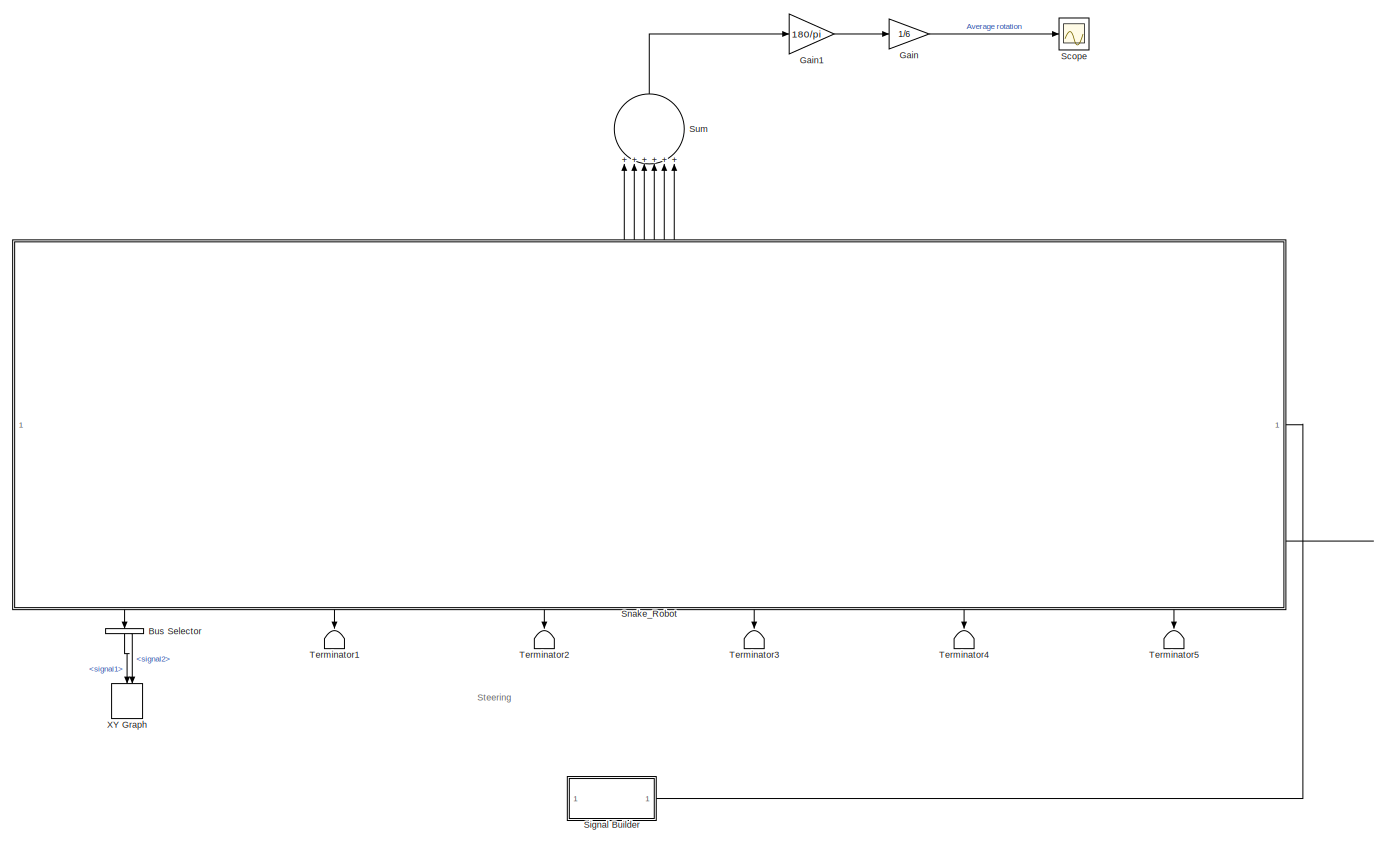
[diagram: root canvas - part 1/2, most of the canvas]
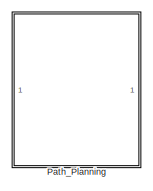
[diagram: root canvas - part 2/2, middle left region]
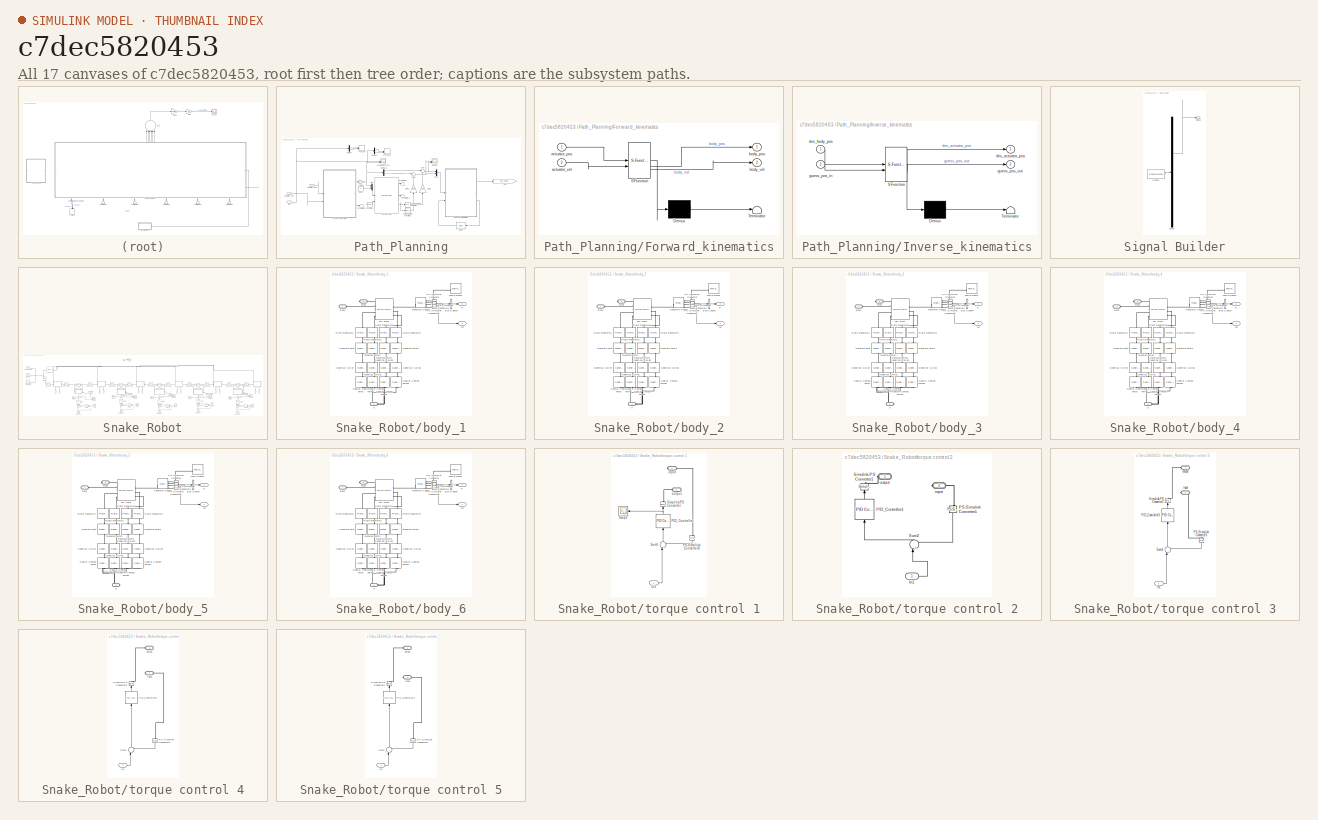
[diagram: thumbnail index - all 17 canvases of the model, root first then tree order]
MODEL slx_c7dec5820453
KIND model
CONFIG AbsTol = 1e-3
CONFIG EnableMultiTasking = on
CONFIG FixedStep = auto
CONFIG MaxStep = auto
CONFIG MinStep = auto
CONFIG RelTol = 1e-5
CONFIG SampleTimeConstraint = Unconstrained
CONFIG SolverName = VariableStepAuto
CONFIG StartTime = 0.0
CONFIG StopTime = 300
BLOCK [BusSelector] Bus Selector
  NameLocation = left
  OutputSignals = signal1,signal2
BLOCK [Gain] Gain
  Gain = 1/6
BLOCK [Gain] Gain1
  Gain = 180/pi
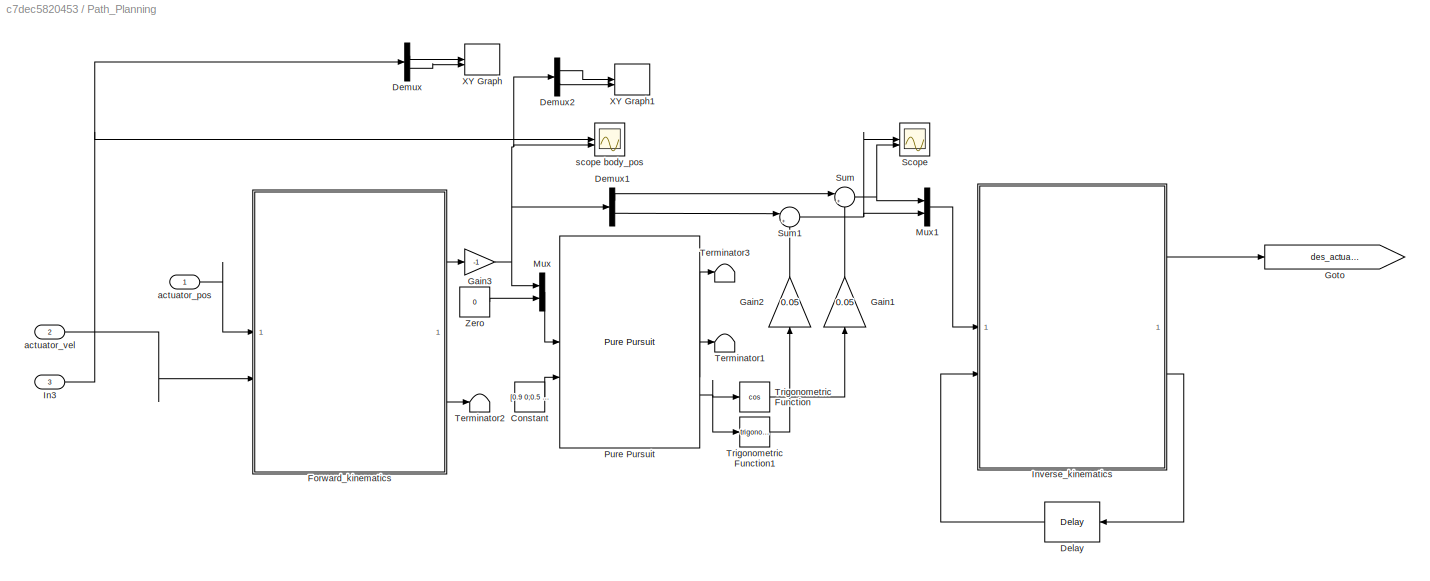
BLOCK [SubSystem] Path_Planning
  Commented = on
BLOCK [Constant] Path_Planning/Constant
  Commented = on
  Value = [0.9 0;0.5 0.2;0.5 -0.2;0.3 0.3]
BLOCK [Delay] Path_Planning/Delay
  Commented = on
  DelayLength = 1
  InitialCondition = zeros(3,1)
  InputPortMap = u0
  NameLocation = top
  SampleTime = 0.01
BLOCK [Demux] Path_Planning/Demux
  Commented = on
  Outputs = 2
BLOCK [Demux] Path_Planning/Demux1
  Commented = on
  Outputs = 2
BLOCK [Demux] Path_Planning/Demux2
  Commented = on
  Outputs = 2
BLOCK [SubSystem] Path_Planning/Forward_kinematics
  Commented = on
  ErrorFcn = Stateflow.Translate.translate
  LibrarySourceBlock = simulink/User-Defined\nFunctions/MATLAB Function
  PermitHierarchicalResolution = ExplicitOnly
  SFBlockType = MATLAB Function
  TreatAsAtomicUnit = on
BLOCK [Demux] Path_Planning/Forward_kinematics/ Demux 
  Outputs = 1
BLOCK [S-Function] Path_Planning/Forward_kinematics/ SFunction 
  EnableBusSupport = on
  FunctionName = sf_sfun
  PortCounts = [2 3]
  SFcnIsStateOwnerBlock = off
  SFunctionDeploymentMode = off
  Tag = Stateflow S-Function 2
BLOCK [Terminator] Path_Planning/Forward_kinematics/ Terminator 
BLOCK [Inport] Path_Planning/Forward_kinematics/actuator_pos
BLOCK [Inport] Path_Planning/Forward_kinematics/actuator_vel
  Port = 2
BLOCK [Outport] Path_Planning/Forward_kinematics/body_pos
BLOCK [Outport] Path_Planning/Forward_kinematics/body_vel
  Port = 2
BLOCK [Gain] Path_Planning/Gain1
  Commented = on
  Gain = 0.05
  NameLocation = right
BLOCK [Gain] Path_Planning/Gain2
  Commented = on
  Gain = 0.05
  NameLocation = right
BLOCK [Gain] Path_Planning/Gain3
  Commented = on
  Gain = -1
BLOCK [Goto] Path_Planning/Goto
  Commented = on
  GotoTag = des_actuator_pos
BLOCK [Inport] Path_Planning/In3
  Port = 3
BLOCK [SubSystem] Path_Planning/Inverse_kinematics
  Commented = on
  ErrorFcn = Stateflow.Translate.translate
  LibrarySourceBlock = simulink/User-Defined\nFunctions/MATLAB Function
  PermitHierarchicalResolution = ExplicitOnly
  SFBlockType = MATLAB Function
  TreatAsAtomicUnit = on
BLOCK [Demux] Path_Planning/Inverse_kinematics/ Demux 
  Outputs = 1
BLOCK [S-Function] Path_Planning/Inverse_kinematics/ SFunction 
  EnableBusSupport = on
  FunctionName = sf_sfun
  PortCounts = [2 3]
  SFcnIsStateOwnerBlock = off
  SFunctionDeploymentMode = off
  Tag = Stateflow S-Function 4
BLOCK [Terminator] Path_Planning/Inverse_kinematics/ Terminator 
BLOCK [Outport] Path_Planning/Inverse_kinematics/des_actuator_pos
BLOCK [Inport] Path_Planning/Inverse_kinematics/des_body_pos
BLOCK [Inport] Path_Planning/Inverse_kinematics/guess_pos_in
  Port = 2
BLOCK [Outport] Path_Planning/Inverse_kinematics/guess_pos_out
  Port = 2
BLOCK [Mux] Path_Planning/Mux
  Commented = on
  DisplayOption = bar
  Inputs = 2
BLOCK [Mux] Path_Planning/Mux1
  Commented = on
  DisplayOption = bar
  Inputs = 2
BLOCK [Reference] Path_Planning/Pure Pursuit  REF=robotalgslib/Pure Pursuit
  Commented = on
  LibrarySourceBlock = navlib/Control Algorithms/Pure Pursuit
  SourceBlock = robotalgslib/Pure Pursuit
  SourceType = nav.slalgs.internal.PurePursuit
BLOCK [Scope] Path_Planning/Scope
  Commented = on
  Floating = off
  NumInputPorts = 2
  ScopeSpecificationString = Simulink.scopes.TimeScopeBlockCfg('CurrentConfiguration', extmgr.ConfigurationSet(extmgr.Configuration('Core','General UI',true),extmgr.Configuration('Core','Source UI',true),extmgr.Configuration('Sources','WiredSimulink',true,'DataLoggingVariableName','ScopeData2'),extmgr.Configuration('Visuals','Time Domain',true,'SerializedDisplays',{struct('MinYLimReal','-0.13513','MaxYLimReal','1.07285','YLab...<+1394ch>
BLOCK [Sum] Path_Planning/Sum
  Commented = on
  Inputs = |++
BLOCK [Sum] Path_Planning/Sum1
  Commented = on
  Inputs = |++
BLOCK [Terminator] Path_Planning/Terminator1
  Commented = on
BLOCK [Terminator] Path_Planning/Terminator2
  Commented = on
BLOCK [Terminator] Path_Planning/Terminator3
  Commented = on
BLOCK [Trigonometry] Path_Planning/Trigonometric Function
  Commented = on
  Operator = cos
BLOCK [Trigonometry] Path_Planning/Trigonometric Function1
  Commented = on
BLOCK [Record] Path_Planning/XY Graph
  Commented = on
  CompatibilityTag = XY
  FileSettingsInternal = {"entries":[{"content":{"excelSettings":{"content":{},"type":"Streamout.ExcelSettings"}},"type":"Streamout.FileSettingStorage","uuid":"73da843e-60dd-4a33-b665-f9131d8271e1"}],"packageUris":["http://schema.mathworks.com/mf0/streamout_blocks/R2020a"],"version":"1.0"}
  Layout = [1 1]
  SignalsInternal = {"entries":[{"content":{"signals":[{"content":{"blockPath":["Snake_Robot_v2_wheels_test/Path_Planning/XY Graph"],"channel":[],"dimensions":[1],"domain":"Snake_Robot_v2_wheels_test/Path_Planning/XY Graph","lineColor":"#a2142f","plots":[1],"port":1,"sid":[],"signalID":16,"signalName":"Demux:1"},"type":"RecordBlkView.Signal","uuid":"8e68c205-c0fd-447d-ace0-da6efb5c1fbf"},{"content":{"blockPath":["Sna...<+483ch>
  VisualizationBindings = {"xyplotplugin":{"info":[{"series":[{"bindingParametersList":[{"parameter":"X-Axis","signalID":16,"signalName":"Demux:1"},{"parameter":"Y-Axis","signalID":19,"signalName":"Demux:2"}],"seriesID":12260}],"subplotID":1}]}}
BLOCK [Record] Path_Planning/XY Graph1
  Commented = on
  CompatibilityTag = XY
  FileSettingsInternal = {"entries":[{"content":{"excelSettings":{"content":{},"type":"Streamout.ExcelSettings"}},"type":"Streamout.FileSettingStorage","uuid":"52cbc1bb-b168-4d3a-81e4-39640940caf6"}],"packageUris":["http://schema.mathworks.com/mf0/streamout_blocks/R2020a"],"version":"1.0"}
  Layout = [1 1]
  SignalsInternal = {"entries":[{"content":{"signals":[{"content":{"blockPath":["Snake_Robot_v2_wheels_test/Path_Planning/XY Graph1"],"channel":[],"dimensions":[1,1],"domain":"Snake_Robot_v2_wheels_test/Path_Planning/XY Graph1","lineColor":"#a2142f","plots":[1],"port":1,"sid":[],"signalID":8,"signalName":"Demux2:1"},"type":"RecordBlkView.Signal","uuid":"6807b1ac-bdd6-4ace-a695-6e3cb940d5f2"},{"content":{"blockPath":[...<+492ch>
  VisualizationBindings = {"xyplotplugin":{"info":[{"series":[{"bindingParametersList":[{"parameter":"X-Axis","signalID":8,"signalName":"Demux2:1"},{"parameter":"Y-Axis","signalID":11,"signalName":"Demux2:2"}],"seriesID":53918}],"subplotID":1}]}}
BLOCK [Constant] Path_Planning/Zero
  Commented = on
  OutDataTypeStr = Inherit: Inherit via back propagation
  Value = 0
BLOCK [Inport] Path_Planning/actuator_pos
BLOCK [Inport] Path_Planning/actuator_vel
  Port = 2
BLOCK [Scope] Path_Planning/scope body_pos
  Commented = on
  Floating = off
  NumInputPorts = 2
  ScopeSpecificationString = Simulink.scopes.TimeScopeBlockCfg('CurrentConfiguration', extmgr.ConfigurationSet(extmgr.Configuration('Core','General UI',true),extmgr.Configuration('Core','Source UI',true),extmgr.Configuration('Sources','WiredSimulink',true),extmgr.Configuration('Visuals','Time Domain',true,'SerializedDisplays',{struct('MinYLimReal','-1.18672','MaxYLimReal','0.68047','YLabelReal','','MinYLimMag','0.00000','MaxY...<+1547ch>
BLOCK [Scope] Scope
  Floating = off
  NumInputPorts = 1
  ScopeSpecificationString = Simulink.scopes.TimeScopeBlockCfg('CurrentConfiguration', extmgr.ConfigurationSet(extmgr.Configuration('Core','General UI',true),extmgr.Configuration('Core','Source UI',true),extmgr.Configuration('Sources','WiredSimulink',true,'DataLoggingVariableName','ScopeData1'),extmgr.Configuration('Visuals','Time Domain',true,'SerializedDisplays',{struct('MinYLimReal','-224.01413','MaxYLimReal','224.89046','...<+1444ch>
BLOCK [SubSystem] Signal Builder
  ClipboardFcn = sigbuilder_block('clipboard');
  CloseFcn = sigbuilder_block('close');
  ContinueFcn = sigbuilder_block('continue');
  CopyFcn = sigbuilder_block('copy');
  DeleteFcn = sigbuilder_block('delete');
  LoadFcn = sigbuilder_block('load');
  MaskHideContents = on
  ModelCloseFcn = sigbuilder_block('modelClose');
  NameChangeFcn = sigbuilder_block('namechange');
  OpenFcn = sigbuilder_block('open',[407.4 143.4 550.8 400.2 ]);
  PauseFcn = sigbuilder_block('pause');
  PreSaveFcn = sigbuilder_block('preSave');
  StartFcn = sigbuilder_block('start');
  StopFcn = sigbuilder_block('stop');
  Tag = STV Subsys
BLOCK [Demux] Signal Builder/Demux
  DisplayOption = none
  Outputs = 1
  Tag = STV Demux
BLOCK [FromWorkspace] Signal Builder/FromWs
  Tag = STV FromWs
  VariableName = tuvar
BLOCK [Outport] Signal Builder/Signal 1
  Tag = STV Outport
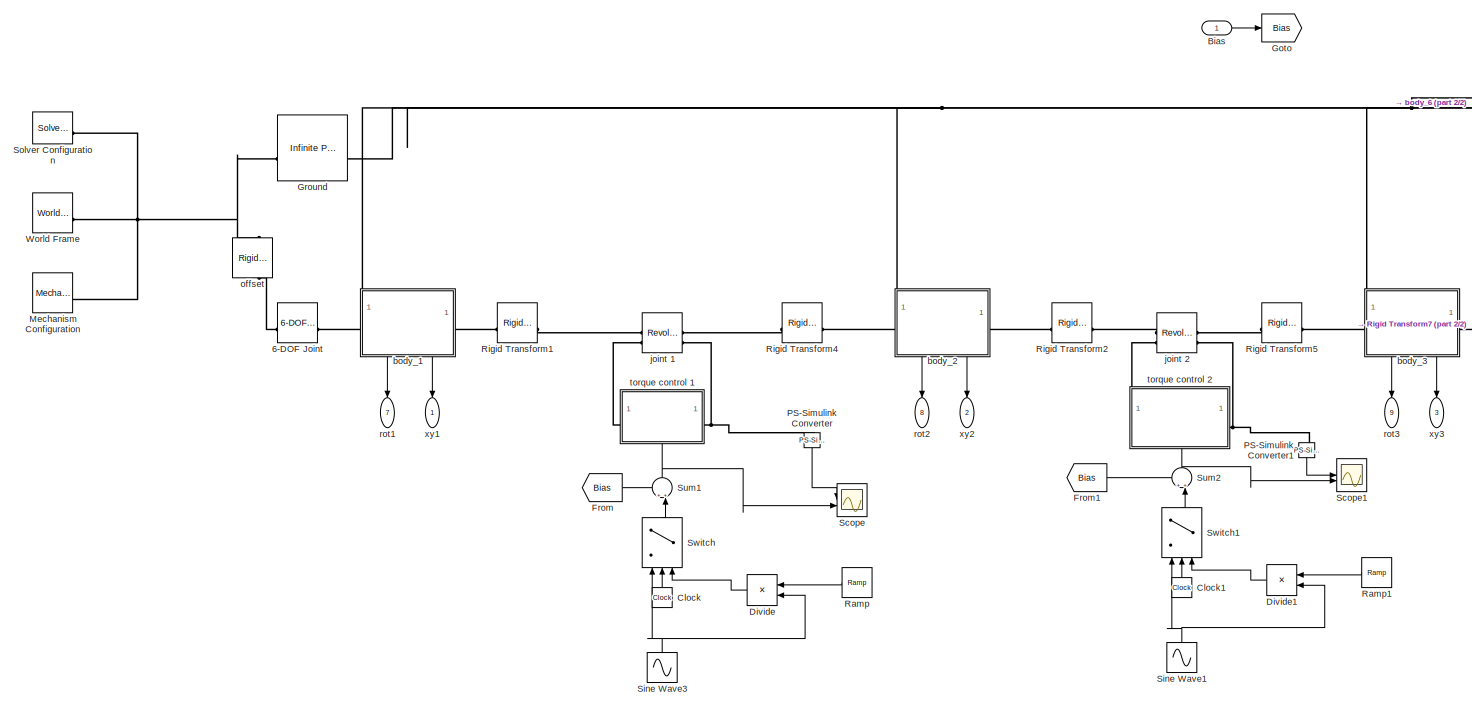
[diagram: Snake_Robot - part 1/2, left side, full height]
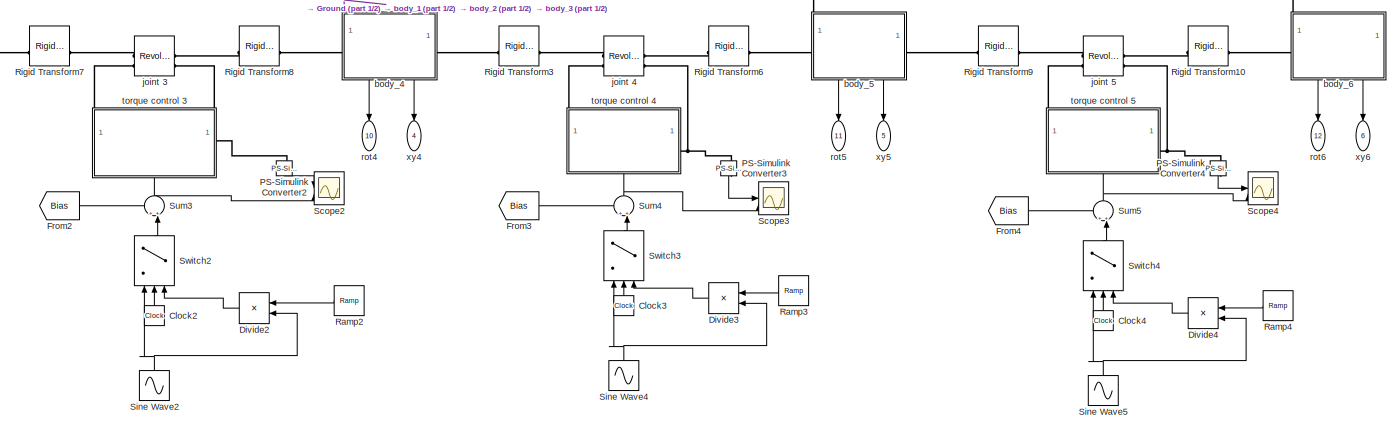
[diagram: Snake_Robot - part 2/2, bottom right region]
BLOCK [SubSystem] Snake_Robot
  PortSchema = {"entries":[{"content":{"sides":[{"content":{"connectorIds":[]},"type":"ConnectorPlacement.EquallySpacedRectSide","uuid":"c8c3f42f-16ea-4b52-929c-6831ad7a0aa6"},{"content":{"connectorIds":["In1"],"side":"RIGHT"},"type":"ConnectorPlacement.EquallySpacedRectSide","uuid":"4df7dcd2-c9b7-4490-9994-4055ff239bfb"},{"content":{"connectorIds":["Out7","Out8","Out9","Out10","Out11","Out12"],"side":"TOP"},"ty...<+463ch>
BLOCK [Reference] Snake_Robot/6-DOF Joint  REF=sm_lib/Joints/6-DOF Joint
  SourceBlock = sm_lib/Joints/6-DOF Joint
  SourceType = 6-DOF Joint
BLOCK [Inport] Snake_Robot/Bias
BLOCK [Clock] Snake_Robot/Clock
  NameLocation = right
BLOCK [Clock] Snake_Robot/Clock1
  NameLocation = right
BLOCK [Clock] Snake_Robot/Clock2
  NameLocation = right
BLOCK [Clock] Snake_Robot/Clock3
  NameLocation = right
BLOCK [Clock] Snake_Robot/Clock4
  NameLocation = right
BLOCK [Product] Snake_Robot/Divide
  Inputs = **
  NameLocation = top
BLOCK [Product] Snake_Robot/Divide1
  Inputs = **
  NameLocation = top
BLOCK [Product] Snake_Robot/Divide2
  Inputs = **
  NameLocation = top
BLOCK [Product] Snake_Robot/Divide3
  Inputs = **
  NameLocation = top
BLOCK [Product] Snake_Robot/Divide4
  Inputs = **
  NameLocation = top
BLOCK [From] Snake_Robot/From
  GotoTag = Bias
BLOCK [From] Snake_Robot/From1
  GotoTag = Bias
BLOCK [From] Snake_Robot/From2
  GotoTag = Bias
BLOCK [From] Snake_Robot/From3
  GotoTag = Bias
BLOCK [From] Snake_Robot/From4
  GotoTag = Bias
BLOCK [Goto] Snake_Robot/Goto
  GotoTag = Bias
BLOCK [Reference] Snake_Robot/Ground  REF=sm_lib/Curves and Surfaces/Infinite Plane
  SourceBlock = sm_lib/Curves and Surfaces/Infinite Plane
  SourceType = Infinite Plane
BLOCK [Reference] Snake_Robot/Mechanism Configuration  REF=sm_lib/Utilities/Mechanism
Configuration
  SourceBlock = sm_lib/Utilities/Mechanism\nConfiguration
  SourceType = Mechanism\nConfiguration
BLOCK [Reference] Snake_Robot/PS-Simulink Converter  REF=nesl_utility/PS-Simulink
Converter
  NameLocation = left
  SourceBlock = nesl_utility/PS-Simulink\nConverter
  SourceType = PS-Simulink\nConverter
BLOCK [Reference] Snake_Robot/PS-Simulink Converter1  REF=nesl_utility/PS-Simulink
Converter
  NameLocation = left
  SourceBlock = nesl_utility/PS-Simulink\nConverter
  SourceType = PS-Simulink\nConverter
BLOCK [Reference] Snake_Robot/PS-Simulink Converter2  REF=nesl_utility/PS-Simulink
Converter
  NameLocation = left
  SourceBlock = nesl_utility/PS-Simulink\nConverter
  SourceType = PS-Simulink\nConverter
BLOCK [Reference] Snake_Robot/PS-Simulink Converter3  REF=nesl_utility/PS-Simulink
Converter
  NameLocation = left
  SourceBlock = nesl_utility/PS-Simulink\nConverter
  SourceType = PS-Simulink\nConverter
BLOCK [Reference] Snake_Robot/PS-Simulink Converter4  REF=nesl_utility/PS-Simulink
Converter
  NameLocation = left
  SourceBlock = nesl_utility/PS-Simulink\nConverter
  SourceType = PS-Simulink\nConverter
BLOCK [Reference] Snake_Robot/Ramp  REF=simulink/Sources/Ramp
  NameLocation = top
  SourceBlock = simulink/Sources/Ramp
  SourceType = Ramp
BLOCK [Reference] Snake_Robot/Ramp1  REF=simulink/Sources/Ramp
  NameLocation = top
  SourceBlock = simulink/Sources/Ramp
  SourceType = Ramp
BLOCK [Reference] Snake_Robot/Ramp2  REF=simulink/Sources/Ramp
  NameLocation = top
  SourceBlock = simulink/Sources/Ramp
  SourceType = Ramp
BLOCK [Reference] Snake_Robot/Ramp3  REF=simulink/Sources/Ramp
  NameLocation = top
  SourceBlock = simulink/Sources/Ramp
  SourceType = Ramp
BLOCK [Reference] Snake_Robot/Ramp4  REF=simulink/Sources/Ramp
  NameLocation = top
  SourceBlock = simulink/Sources/Ramp
  SourceType = Ramp
BLOCK [Reference] Snake_Robot/Rigid Transform1  REF=sm_lib/Frames and
Transforms/Rigid
Transform
  SourceBlock = sm_lib/Frames and\nTransforms/Rigid\nTransform
  SourceType = Rigid\nTransform
BLOCK [Reference] Snake_Robot/Rigid Transform10  REF=sm_lib/Frames and
Transforms/Rigid
Transform
  SourceBlock = sm_lib/Frames and\nTransforms/Rigid\nTransform
  SourceType = Rigid\nTransform
BLOCK [Reference] Snake_Robot/Rigid Transform2  REF=sm_lib/Frames and
Transforms/Rigid
Transform
  SourceBlock = sm_lib/Frames and\nTransforms/Rigid\nTransform
  SourceType = Rigid\nTransform
BLOCK [Reference] Snake_Robot/Rigid Transform3  REF=sm_lib/Frames and
Transforms/Rigid
Transform
  SourceBlock = sm_lib/Frames and\nTransforms/Rigid\nTransform
  SourceType = Rigid\nTransform
BLOCK [Reference] Snake_Robot/Rigid Transform4  REF=sm_lib/Frames and
Transforms/Rigid
Transform
  SourceBlock = sm_lib/Frames and\nTransforms/Rigid\nTransform
  SourceType = Rigid\nTransform
BLOCK [Reference] Snake_Robot/Rigid Transform5  REF=sm_lib/Frames and
Transforms/Rigid
Transform
  SourceBlock = sm_lib/Frames and\nTransforms/Rigid\nTransform
  SourceType = Rigid\nTransform
BLOCK [Reference] Snake_Robot/Rigid Transform6  REF=sm_lib/Frames and
Transforms/Rigid
Transform
  SourceBlock = sm_lib/Frames and\nTransforms/Rigid\nTransform
  SourceType = Rigid\nTransform
BLOCK [Reference] Snake_Robot/Rigid Transform7  REF=sm_lib/Frames and
Transforms/Rigid
Transform
  SourceBlock = sm_lib/Frames and\nTransforms/Rigid\nTransform
  SourceType = Rigid\nTransform
BLOCK [Reference] Snake_Robot/Rigid Transform8  REF=sm_lib/Frames and
Transforms/Rigid
Transform
  SourceBlock = sm_lib/Frames and\nTransforms/Rigid\nTransform
  SourceType = Rigid\nTransform
BLOCK [Reference] Snake_Robot/Rigid Transform9  REF=sm_lib/Frames and
Transforms/Rigid
Transform
  SourceBlock = sm_lib/Frames and\nTransforms/Rigid\nTransform
  SourceType = Rigid\nTransform
BLOCK [Scope] Snake_Robot/Scope
  Floating = off
  NumInputPorts = 2
  ScopeSpecificationString = Simulink.scopes.TimeScopeBlockCfg('CurrentConfiguration', extmgr.ConfigurationSet(extmgr.Configuration('Core','General UI',true),extmgr.Configuration('Core','Source UI',true),extmgr.Configuration('Sources','WiredSimulink',true,'DataLoggingVariableName','ScopeData1'),extmgr.Configuration('Visuals','Time Domain',true,'SerializedDisplays',{struct('MinYLimReal','-2.49996','MaxYLimReal','2.49969','YLab...<+1458ch>
BLOCK [Scope] Snake_Robot/Scope1
  Floating = off
  NumInputPorts = 2
  ScopeSpecificationString = Simulink.scopes.TimeScopeBlockCfg('CurrentConfiguration', extmgr.ConfigurationSet(extmgr.Configuration('Core','General UI',true),extmgr.Configuration('Core','Source UI',true),extmgr.Configuration('Sources','WiredSimulink',true,'DataLoggingVariableName','ScopeData2'),extmgr.Configuration('Visuals','Time Domain',true,'SerializedDisplays',{struct('MinYLimReal','-2.81241','MaxYLimReal','2.82259','YLab...<+1413ch>
BLOCK [Scope] Snake_Robot/Scope2
  Floating = off
  NumInputPorts = 2
  ScopeSpecificationString = Simulink.scopes.TimeScopeBlockCfg('CurrentConfiguration', extmgr.ConfigurationSet(extmgr.Configuration('Core','General UI',true),extmgr.Configuration('Core','Source UI',true),extmgr.Configuration('Sources','WiredSimulink',true,'DataLoggingVariableName','ScopeData3'),extmgr.Configuration('Visuals','Time Domain',true,'SerializedDisplays',{struct('MinYLimReal','-3.75','MaxYLimReal','3.75','YLabelReal...<+1398ch>
BLOCK [Scope] Snake_Robot/Scope3
  Floating = off
  NumInputPorts = 2
  ScopeSpecificationString = Simulink.scopes.TimeScopeBlockCfg('CurrentConfiguration', extmgr.ConfigurationSet(extmgr.Configuration('Core','General UI',true),extmgr.Configuration('Core','Source UI',true),extmgr.Configuration('Sources','WiredSimulink',true,'DataLoggingVariableName','ScopeData4'),extmgr.Configuration('Visuals','Time Domain',true,'SerializedDisplays',{struct('MinYLimReal','-3.75','MaxYLimReal','3.75','YLabelReal...<+1398ch>
BLOCK [Scope] Snake_Robot/Scope4
  Floating = off
  NumInputPorts = 2
  ScopeSpecificationString = Simulink.scopes.TimeScopeBlockCfg('CurrentConfiguration', extmgr.ConfigurationSet(extmgr.Configuration('Core','General UI',true),extmgr.Configuration('Core','Source UI',true),extmgr.Configuration('Sources','WiredSimulink',true,'DataLoggingVariableName','ScopeData5'),extmgr.Configuration('Visuals','Time Domain',true,'SerializedDisplays',{struct('MinYLimReal','-3.75','MaxYLimReal','3.75','YLabelReal...<+1398ch>
BLOCK [Sin] Snake_Robot/Sine Wave1
  Amplitude = amplitude
  Frequency = frequency
  NameLocation = right
  Phase = 1*phase
  SampleTime = 0.01
BLOCK [Sin] Snake_Robot/Sine Wave2
  Amplitude = amplitude
  Frequency = frequency
  NameLocation = right
  Phase = 2*phase
  SampleTime = 0.01
BLOCK [Sin] Snake_Robot/Sine Wave3
  Amplitude = amplitude
  Frequency = frequency
  NameLocation = right
  Phase = 0*phase
  SampleTime = 0.01
BLOCK [Sin] Snake_Robot/Sine Wave4
  Amplitude = amplitude
  Frequency = frequency
  NameLocation = right
  Phase = 3*phase
  SampleTime = 0.01
BLOCK [Sin] Snake_Robot/Sine Wave5
  Amplitude = amplitude
  Frequency = frequency
  NameLocation = right
  Phase = 4*phase
  SampleTime = 0.01
BLOCK [Reference] Snake_Robot/Solver Configuration  REF=nesl_utility/Solver
Configuration
  SourceBlock = nesl_utility/Solver\nConfiguration
  SourceType = Solver\nConfiguration
BLOCK [Sum] Snake_Robot/Sum1
  Inputs = ++|
  NameLocation = right
BLOCK [Sum] Snake_Robot/Sum2
  Inputs = ++|
  NameLocation = right
BLOCK [Sum] Snake_Robot/Sum3
  Inputs = ++|
  NameLocation = right
BLOCK [Sum] Snake_Robot/Sum4
  Inputs = ++|
  NameLocation = right
BLOCK [Sum] Snake_Robot/Sum5
  Inputs = ++|
  NameLocation = right
BLOCK [Switch] Snake_Robot/Switch
  InputSameDT = off
  NameLocation = right
  SaturateOnIntegerOverflow = off
  Threshold = 2
BLOCK [Switch] Snake_Robot/Switch1
  Criteria = u2 > Threshold
  InputSameDT = off
  NameLocation = right
  SaturateOnIntegerOverflow = off
  Threshold = 2
BLOCK [Switch] Snake_Robot/Switch2
  Criteria = u2 > Threshold
  InputSameDT = off
  NameLocation = right
  SaturateOnIntegerOverflow = off
  Threshold = 2
BLOCK [Switch] Snake_Robot/Switch3
  Criteria = u2 > Threshold
  InputSameDT = off
  NameLocation = right
  SaturateOnIntegerOverflow = off
  Threshold = 2
BLOCK [Switch] Snake_Robot/Switch4
  Criteria = u2 > Threshold
  InputSameDT = off
  NameLocation = right
  SaturateOnIntegerOverflow = off
  Threshold = 2
BLOCK [Reference] Snake_Robot/World Frame  REF=sm_lib/Frames and
Transforms/World Frame
  SourceBlock = sm_lib/Frames and\nTransforms/World Frame
  SourceType = World Frame
BLOCK [SubSystem] Snake_Robot/body_1
  PortSchema = {"entries":[{"content":{"sides":[{"content":{"connectorIds":["LConn1"]},"type":"ConnectorPlacement.EquallySpacedRectSide","uuid":"751caf70-fea4-4832-96d1-cfb89594f882"},{"content":{"connectorIds":["RConn1"],"side":"RIGHT"},"type":"ConnectorPlacement.EquallySpacedRectSide","uuid":"f4256cb0-7155-4962-9e91-24184222dcac"},{"content":{"connectorIds":["LConn2"],"side":"TOP"},"type":"ConnectorPlacement.E...<+410ch>  <repeated x6 — deduplicated; at blocks: body_1, body_2, body_3, body_4, body_5, body_6>
BLOCK [PMIOPort] Snake_Robot/body_1/Back
  Side = Left
BLOCK [BusCreator] Snake_Robot/body_1/Bus Creator
  DisplayOption = bar
  InheritFromInputs = on
  Inputs = 2
BLOCK [PMIOPort] Snake_Robot/body_1/Front
  NameLocation = top
  Port = 3
  Side = Right
BLOCK [PMIOPort] Snake_Robot/body_1/G
  Port = 2
  Side = Left
BLOCK [Reference] Snake_Robot/body_1/PS-Simulink Converter  REF=nesl_utility/PS-Simulink
Converter
  SourceBlock = nesl_utility/PS-Simulink\nConverter
  SourceType = PS-Simulink\nConverter
BLOCK [Reference] Snake_Robot/body_1/PS-Simulink Converter1  REF=nesl_utility/PS-Simulink
Converter
  SourceBlock = nesl_utility/PS-Simulink\nConverter
  SourceType = PS-Simulink\nConverter
BLOCK [Reference] Snake_Robot/body_1/PS-Simulink Converter2  REF=nesl_utility/PS-Simulink
Converter
  SourceBlock = nesl_utility/PS-Simulink\nConverter
  SourceType = PS-Simulink\nConverter
BLOCK [Reference] Snake_Robot/body_1/Revolute Joint  REF=sm_lib/Joints/Revolute Joint
  NameLocation = right
  SourceBlock = sm_lib/Joints/Revolute Joint
  SourceType = Revolute Joint
BLOCK [Reference] Snake_Robot/body_1/Revolute Joint1  REF=sm_lib/Joints/Revolute Joint
  NameLocation = right
  SourceBlock = sm_lib/Joints/Revolute Joint
  SourceType = Revolute Joint
BLOCK [Reference] Snake_Robot/body_1/Revolute Joint2  REF=sm_lib/Joints/Revolute Joint
  NameLocation = right
  SourceBlock = sm_lib/Joints/Revolute Joint
  SourceType = Revolute Joint
BLOCK [Reference] Snake_Robot/body_1/Revolute Joint3  REF=sm_lib/Joints/Revolute Joint
  NameLocation = right
  SourceBlock = sm_lib/Joints/Revolute Joint
  SourceType = Revolute Joint
BLOCK [Reference] Snake_Robot/body_1/Rigid Transform1  REF=sm_lib/Frames and
Transforms/Rigid
Transform
  NameLocation = left
  SourceBlock = sm_lib/Frames and\nTransforms/Rigid\nTransform
  SourceType = Rigid\nTransform
BLOCK [Reference] Snake_Robot/body_1/Rigid Transform2  REF=sm_lib/Frames and
Transforms/Rigid
Transform
  NameLocation = left
  SourceBlock = sm_lib/Frames and\nTransforms/Rigid\nTransform
  SourceType = Rigid\nTransform
BLOCK [Reference] Snake_Robot/body_1/Rigid Transform3  REF=sm_lib/Frames and
Transforms/Rigid
Transform
  NameLocation = left
  SourceBlock = sm_lib/Frames and\nTransforms/Rigid\nTransform
  SourceType = Rigid\nTransform
BLOCK [Reference] Snake_Robot/body_1/Rigid Transform4  REF=sm_lib/Frames and
Transforms/Rigid
Transform
  NameLocation = left
  SourceBlock = sm_lib/Frames and\nTransforms/Rigid\nTransform
  SourceType = Rigid\nTransform
BLOCK [Reference] Snake_Robot/body_1/Spatial Contact Force  REF=sm_lib/Forces and
Torques/Spatial
Contact Force
  NameLocation = right
  SourceBlock = sm_lib/Forces and\nTorques/Spatial\nContact Force
  SourceType = Spatial\nContact Force
BLOCK [Reference] Snake_Robot/body_1/Spatial Contact Force1  REF=sm_lib/Forces and
Torques/Spatial
Contact Force
  NameLocation = right
  SourceBlock = sm_lib/Forces and\nTorques/Spatial\nContact Force
  SourceType = Spatial\nContact Force
BLOCK [Reference] Snake_Robot/body_1/Spatial Contact Force2  REF=sm_lib/Forces and
Torques/Spatial
Contact Force
  NameLocation = right
  SourceBlock = sm_lib/Forces and\nTorques/Spatial\nContact Force
  SourceType = Spatial\nContact Force
BLOCK [Reference] Snake_Robot/body_1/Spatial Contact Force3  REF=sm_lib/Forces and
Torques/Spatial
Contact Force
  NameLocation = right
  SourceBlock = sm_lib/Forces and\nTorques/Spatial\nContact Force
  SourceType = Spatial\nContact Force
BLOCK [Reference] Snake_Robot/body_1/Spherical Solid1  REF=sm_lib/Body Elements/Spherical Solid
  NameLocation = right
  SourceBlock = sm_lib/Body Elements/Spherical Solid
  SourceType = Spherical Solid
BLOCK [Reference] Snake_Robot/body_1/Spherical Solid2  REF=sm_lib/Body Elements/Spherical Solid
  NameLocation = right
  SourceBlock = sm_lib/Body Elements/Spherical Solid
  SourceType = Spherical Solid
BLOCK [Reference] Snake_Robot/body_1/Spherical Solid3  REF=sm_lib/Body Elements/Spherical Solid
  NameLocation = right
  SourceBlock = sm_lib/Body Elements/Spherical Solid
  SourceType = Spherical Solid
BLOCK [Reference] Snake_Robot/body_1/Spherical Solid4  REF=sm_lib/Body Elements/Spherical Solid
  NameLocation = right
  SourceBlock = sm_lib/Body Elements/Spherical Solid
  SourceType = Spherical Solid
BLOCK [Reference] Snake_Robot/body_1/Tail block  REF=sm_lib/Body Elements/Brick Solid
  NameLocation = top
  SourceBlock = sm_lib/Body Elements/Brick Solid
  SourceType = Brick Solid
BLOCK [Reference] Snake_Robot/body_1/Transform Sensor  REF=sm_lib/Frames and
Transforms/Transform
Sensor
  SourceBlock = sm_lib/Frames and\nTransforms/Transform\nSensor
  SourceType = Transform\nSensor
BLOCK [Reference] Snake_Robot/body_1/World Frame  REF=sm_lib/Frames and
Transforms/World Frame
  NameLocation = top
  SourceBlock = sm_lib/Frames and\nTransforms/World Frame
  SourceType = World Frame
BLOCK [Outport] Snake_Robot/body_1/rot
BLOCK [Outport] Snake_Robot/body_1/xy
  Port = 2
BLOCK [SubSystem] Snake_Robot/body_2
BLOCK [PMIOPort] Snake_Robot/body_2/Back
  Side = Left
BLOCK [BusCreator] Snake_Robot/body_2/Bus Creator
  DisplayOption = bar
  InheritFromInputs = on
  Inputs = 2
BLOCK [PMIOPort] Snake_Robot/body_2/Front
  NameLocation = top
  Port = 3
  Side = Right
BLOCK [PMIOPort] Snake_Robot/body_2/G
  Port = 2
  Side = Left
BLOCK [Reference] Snake_Robot/body_2/PS-Simulink Converter  REF=nesl_utility/PS-Simulink
Converter
  SourceBlock = nesl_utility/PS-Simulink\nConverter
  SourceType = PS-Simulink\nConverter
BLOCK [Reference] Snake_Robot/body_2/PS-Simulink Converter1  REF=nesl_utility/PS-Simulink
Converter
  SourceBlock = nesl_utility/PS-Simulink\nConverter
  SourceType = PS-Simulink\nConverter
BLOCK [Reference] Snake_Robot/body_2/PS-Simulink Converter2  REF=nesl_utility/PS-Simulink
Converter
  SourceBlock = nesl_utility/PS-Simulink\nConverter
  SourceType = PS-Simulink\nConverter
BLOCK [Reference] Snake_Robot/body_2/Revolute Joint  REF=sm_lib/Joints/Revolute Joint
  NameLocation = right
  SourceBlock = sm_lib/Joints/Revolute Joint
  SourceType = Revolute Joint
BLOCK [Reference] Snake_Robot/body_2/Revolute Joint1  REF=sm_lib/Joints/Revolute Joint
  NameLocation = right
  SourceBlock = sm_lib/Joints/Revolute Joint
  SourceType = Revolute Joint
BLOCK [Reference] Snake_Robot/body_2/Revolute Joint2  REF=sm_lib/Joints/Revolute Joint
  NameLocation = right
  SourceBlock = sm_lib/Joints/Revolute Joint
  SourceType = Revolute Joint
BLOCK [Reference] Snake_Robot/body_2/Revolute Joint3  REF=sm_lib/Joints/Revolute Joint
  NameLocation = right
  SourceBlock = sm_lib/Joints/Revolute Joint
  SourceType = Revolute Joint
BLOCK [Reference] Snake_Robot/body_2/Rigid Transform1  REF=sm_lib/Frames and
Transforms/Rigid
Transform
  NameLocation = left
  SourceBlock = sm_lib/Frames and\nTransforms/Rigid\nTransform
  SourceType = Rigid\nTransform
BLOCK [Reference] Snake_Robot/body_2/Rigid Transform2  REF=sm_lib/Frames and
Transforms/Rigid
Transform
  NameLocation = left
  SourceBlock = sm_lib/Frames and\nTransforms/Rigid\nTransform
  SourceType = Rigid\nTransform
BLOCK [Reference] Snake_Robot/body_2/Rigid Transform3  REF=sm_lib/Frames and
Transforms/Rigid
Transform
  NameLocation = left
  SourceBlock = sm_lib/Frames and\nTransforms/Rigid\nTransform
  SourceType = Rigid\nTransform
BLOCK [Reference] Snake_Robot/body_2/Rigid Transform4  REF=sm_lib/Frames and
Transforms/Rigid
Transform
  NameLocation = left
  SourceBlock = sm_lib/Frames and\nTransforms/Rigid\nTransform
  SourceType = Rigid\nTransform
BLOCK [Reference] Snake_Robot/body_2/Spatial Contact Force  REF=sm_lib/Forces and
Torques/Spatial
Contact Force
  NameLocation = right
  SourceBlock = sm_lib/Forces and\nTorques/Spatial\nContact Force
  SourceType = Spatial\nContact Force
BLOCK [Reference] Snake_Robot/body_2/Spatial Contact Force1  REF=sm_lib/Forces and
Torques/Spatial
Contact Force
  NameLocation = right
  SourceBlock = sm_lib/Forces and\nTorques/Spatial\nContact Force
  SourceType = Spatial\nContact Force
BLOCK [Reference] Snake_Robot/body_2/Spatial Contact Force2  REF=sm_lib/Forces and
Torques/Spatial
Contact Force
  NameLocation = right
  SourceBlock = sm_lib/Forces and\nTorques/Spatial\nContact Force
  SourceType = Spatial\nContact Force
BLOCK [Reference] Snake_Robot/body_2/Spatial Contact Force3  REF=sm_lib/Forces and
Torques/Spatial
Contact Force
  NameLocation = right
  SourceBlock = sm_lib/Forces and\nTorques/Spatial\nContact Force
  SourceType = Spatial\nContact Force
BLOCK [Reference] Snake_Robot/body_2/Spherical Solid1  REF=sm_lib/Body Elements/Spherical Solid
  NameLocation = right
  SourceBlock = sm_lib/Body Elements/Spherical Solid
  SourceType = Spherical Solid
BLOCK [Reference] Snake_Robot/body_2/Spherical Solid2  REF=sm_lib/Body Elements/Spherical Solid
  NameLocation = right
  SourceBlock = sm_lib/Body Elements/Spherical Solid
  SourceType = Spherical Solid
BLOCK [Reference] Snake_Robot/body_2/Spherical Solid3  REF=sm_lib/Body Elements/Spherical Solid
  NameLocation = right
  SourceBlock = sm_lib/Body Elements/Spherical Solid
  SourceType = Spherical Solid
BLOCK [Reference] Snake_Robot/body_2/Spherical Solid4  REF=sm_lib/Body Elements/Spherical Solid
  NameLocation = right
  SourceBlock = sm_lib/Body Elements/Spherical Solid
  SourceType = Spherical Solid
BLOCK [Reference] Snake_Robot/body_2/Tail block  REF=sm_lib/Body Elements/Brick Solid
  NameLocation = top
  SourceBlock = sm_lib/Body Elements/Brick Solid
  SourceType = Brick Solid
BLOCK [Reference] Snake_Robot/body_2/Transform Sensor  REF=sm_lib/Frames and
Transforms/Transform
Sensor
  SourceBlock = sm_lib/Frames and\nTransforms/Transform\nSensor
  SourceType = Transform\nSensor
BLOCK [Reference] Snake_Robot/body_2/World Frame  REF=sm_lib/Frames and
Transforms/World Frame
  NameLocation = top
  SourceBlock = sm_lib/Frames and\nTransforms/World Frame
  SourceType = World Frame
BLOCK [Outport] Snake_Robot/body_2/rot
BLOCK [Outport] Snake_Robot/body_2/xy
  Port = 2
BLOCK [SubSystem] Snake_Robot/body_3
BLOCK [PMIOPort] Snake_Robot/body_3/Back
  Side = Left
BLOCK [BusCreator] Snake_Robot/body_3/Bus Creator
  DisplayOption = bar
  InheritFromInputs = on
  Inputs = 2
BLOCK [PMIOPort] Snake_Robot/body_3/Front
  NameLocation = top
  Port = 3
  Side = Right
BLOCK [PMIOPort] Snake_Robot/body_3/G
  Port = 2
  Side = Left
BLOCK [Reference] Snake_Robot/body_3/PS-Simulink Converter  REF=nesl_utility/PS-Simulink
Converter
  SourceBlock = nesl_utility/PS-Simulink\nConverter
  SourceType = PS-Simulink\nConverter
BLOCK [Reference] Snake_Robot/body_3/PS-Simulink Converter1  REF=nesl_utility/PS-Simulink
Converter
  SourceBlock = nesl_utility/PS-Simulink\nConverter
  SourceType = PS-Simulink\nConverter
BLOCK [Reference] Snake_Robot/body_3/PS-Simulink Converter2  REF=nesl_utility/PS-Simulink
Converter
  SourceBlock = nesl_utility/PS-Simulink\nConverter
  SourceType = PS-Simulink\nConverter
BLOCK [Reference] Snake_Robot/body_3/Revolute Joint  REF=sm_lib/Joints/Revolute Joint
  NameLocation = right
  SourceBlock = sm_lib/Joints/Revolute Joint
  SourceType = Revolute Joint
BLOCK [Reference] Snake_Robot/body_3/Revolute Joint1  REF=sm_lib/Joints/Revolute Joint
  NameLocation = right
  SourceBlock = sm_lib/Joints/Revolute Joint
  SourceType = Revolute Joint
BLOCK [Reference] Snake_Robot/body_3/Revolute Joint2  REF=sm_lib/Joints/Revolute Joint
  NameLocation = right
  SourceBlock = sm_lib/Joints/Revolute Joint
  SourceType = Revolute Joint
BLOCK [Reference] Snake_Robot/body_3/Revolute Joint3  REF=sm_lib/Joints/Revolute Joint
  NameLocation = right
  SourceBlock = sm_lib/Joints/Revolute Joint
  SourceType = Revolute Joint
BLOCK [Reference] Snake_Robot/body_3/Rigid Transform1  REF=sm_lib/Frames and
Transforms/Rigid
Transform
  NameLocation = left
  SourceBlock = sm_lib/Frames and\nTransforms/Rigid\nTransform
  SourceType = Rigid\nTransform
BLOCK [Reference] Snake_Robot/body_3/Rigid Transform2  REF=sm_lib/Frames and
Transforms/Rigid
Transform
  NameLocation = left
  SourceBlock = sm_lib/Frames and\nTransforms/Rigid\nTransform
  SourceType = Rigid\nTransform
BLOCK [Reference] Snake_Robot/body_3/Rigid Transform3  REF=sm_lib/Frames and
Transforms/Rigid
Transform
  NameLocation = left
  SourceBlock = sm_lib/Frames and\nTransforms/Rigid\nTransform
  SourceType = Rigid\nTransform
BLOCK [Reference] Snake_Robot/body_3/Rigid Transform4  REF=sm_lib/Frames and
Transforms/Rigid
Transform
  NameLocation = left
  SourceBlock = sm_lib/Frames and\nTransforms/Rigid\nTransform
  SourceType = Rigid\nTransform
BLOCK [Reference] Snake_Robot/body_3/Spatial Contact Force  REF=sm_lib/Forces and
Torques/Spatial
Contact Force
  NameLocation = right
  SourceBlock = sm_lib/Forces and\nTorques/Spatial\nContact Force
  SourceType = Spatial\nContact Force
BLOCK [Reference] Snake_Robot/body_3/Spatial Contact Force1  REF=sm_lib/Forces and
Torques/Spatial
Contact Force
  NameLocation = right
  SourceBlock = sm_lib/Forces and\nTorques/Spatial\nContact Force
  SourceType = Spatial\nContact Force
BLOCK [Reference] Snake_Robot/body_3/Spatial Contact Force2  REF=sm_lib/Forces and
Torques/Spatial
Contact Force
  NameLocation = right
  SourceBlock = sm_lib/Forces and\nTorques/Spatial\nContact Force
  SourceType = Spatial\nContact Force
BLOCK [Reference] Snake_Robot/body_3/Spatial Contact Force3  REF=sm_lib/Forces and
Torques/Spatial
Contact Force
  NameLocation = right
  SourceBlock = sm_lib/Forces and\nTorques/Spatial\nContact Force
  SourceType = Spatial\nContact Force
BLOCK [Reference] Snake_Robot/body_3/Spherical Solid1  REF=sm_lib/Body Elements/Spherical Solid
  NameLocation = right
  SourceBlock = sm_lib/Body Elements/Spherical Solid
  SourceType = Spherical Solid
BLOCK [Reference] Snake_Robot/body_3/Spherical Solid2  REF=sm_lib/Body Elements/Spherical Solid
  NameLocation = right
  SourceBlock = sm_lib/Body Elements/Spherical Solid
  SourceType = Spherical Solid
BLOCK [Reference] Snake_Robot/body_3/Spherical Solid3  REF=sm_lib/Body Elements/Spherical Solid
  NameLocation = right
  SourceBlock = sm_lib/Body Elements/Spherical Solid
  SourceType = Spherical Solid
BLOCK [Reference] Snake_Robot/body_3/Spherical Solid4  REF=sm_lib/Body Elements/Spherical Solid
  NameLocation = right
  SourceBlock = sm_lib/Body Elements/Spherical Solid
  SourceType = Spherical Solid
BLOCK [Reference] Snake_Robot/body_3/Tail block  REF=sm_lib/Body Elements/Brick Solid
  NameLocation = top
  SourceBlock = sm_lib/Body Elements/Brick Solid
  SourceType = Brick Solid
BLOCK [Reference] Snake_Robot/body_3/Transform Sensor  REF=sm_lib/Frames and
Transforms/Transform
Sensor
  SourceBlock = sm_lib/Frames and\nTransforms/Transform\nSensor
  SourceType = Transform\nSensor
BLOCK [Reference] Snake_Robot/body_3/World Frame  REF=sm_lib/Frames and
Transforms/World Frame
  NameLocation = top
  SourceBlock = sm_lib/Frames and\nTransforms/World Frame
  SourceType = World Frame
BLOCK [Outport] Snake_Robot/body_3/rot
BLOCK [Outport] Snake_Robot/body_3/xy
  Port = 2
BLOCK [SubSystem] Snake_Robot/body_4
BLOCK [PMIOPort] Snake_Robot/body_4/Back
  Side = Left
BLOCK [BusCreator] Snake_Robot/body_4/Bus Creator
  DisplayOption = bar
  InheritFromInputs = on
  Inputs = 2
BLOCK [PMIOPort] Snake_Robot/body_4/Front
  NameLocation = top
  Port = 3
  Side = Right
BLOCK [PMIOPort] Snake_Robot/body_4/G
  Port = 2
  Side = Left
BLOCK [Reference] Snake_Robot/body_4/PS-Simulink Converter  REF=nesl_utility/PS-Simulink
Converter
  SourceBlock = nesl_utility/PS-Simulink\nConverter
  SourceType = PS-Simulink\nConverter
BLOCK [Reference] Snake_Robot/body_4/PS-Simulink Converter1  REF=nesl_utility/PS-Simulink
Converter
  SourceBlock = nesl_utility/PS-Simulink\nConverter
  SourceType = PS-Simulink\nConverter
BLOCK [Reference] Snake_Robot/body_4/PS-Simulink Converter2  REF=nesl_utility/PS-Simulink
Converter
  SourceBlock = nesl_utility/PS-Simulink\nConverter
  SourceType = PS-Simulink\nConverter
BLOCK [Reference] Snake_Robot/body_4/Revolute Joint  REF=sm_lib/Joints/Revolute Joint
  NameLocation = right
  SourceBlock = sm_lib/Joints/Revolute Joint
  SourceType = Revolute Joint
BLOCK [Reference] Snake_Robot/body_4/Revolute Joint1  REF=sm_lib/Joints/Revolute Joint
  NameLocation = right
  SourceBlock = sm_lib/Joints/Revolute Joint
  SourceType = Revolute Joint
BLOCK [Reference] Snake_Robot/body_4/Revolute Joint2  REF=sm_lib/Joints/Revolute Joint
  NameLocation = right
  SourceBlock = sm_lib/Joints/Revolute Joint
  SourceType = Revolute Joint
BLOCK [Reference] Snake_Robot/body_4/Revolute Joint3  REF=sm_lib/Joints/Revolute Joint
  NameLocation = right
  SourceBlock = sm_lib/Joints/Revolute Joint
  SourceType = Revolute Joint
BLOCK [Reference] Snake_Robot/body_4/Rigid Transform1  REF=sm_lib/Frames and
Transforms/Rigid
Transform
  NameLocation = left
  SourceBlock = sm_lib/Frames and\nTransforms/Rigid\nTransform
  SourceType = Rigid\nTransform
BLOCK [Reference] Snake_Robot/body_4/Rigid Transform2  REF=sm_lib/Frames and
Transforms/Rigid
Transform
  NameLocation = left
  SourceBlock = sm_lib/Frames and\nTransforms/Rigid\nTransform
  SourceType = Rigid\nTransform
BLOCK [Reference] Snake_Robot/body_4/Rigid Transform3  REF=sm_lib/Frames and
Transforms/Rigid
Transform
  NameLocation = left
  SourceBlock = sm_lib/Frames and\nTransforms/Rigid\nTransform
  SourceType = Rigid\nTransform
BLOCK [Reference] Snake_Robot/body_4/Rigid Transform4  REF=sm_lib/Frames and
Transforms/Rigid
Transform
  NameLocation = left
  SourceBlock = sm_lib/Frames and\nTransforms/Rigid\nTransform
  SourceType = Rigid\nTransform
BLOCK [Reference] Snake_Robot/body_4/Spatial Contact Force  REF=sm_lib/Forces and
Torques/Spatial
Contact Force
  NameLocation = right
  SourceBlock = sm_lib/Forces and\nTorques/Spatial\nContact Force
  SourceType = Spatial\nContact Force
BLOCK [Reference] Snake_Robot/body_4/Spatial Contact Force1  REF=sm_lib/Forces and
Torques/Spatial
Contact Force
  NameLocation = right
  SourceBlock = sm_lib/Forces and\nTorques/Spatial\nContact Force
  SourceType = Spatial\nContact Force
BLOCK [Reference] Snake_Robot/body_4/Spatial Contact Force2  REF=sm_lib/Forces and
Torques/Spatial
Contact Force
  NameLocation = right
  SourceBlock = sm_lib/Forces and\nTorques/Spatial\nContact Force
  SourceType = Spatial\nContact Force
BLOCK [Reference] Snake_Robot/body_4/Spatial Contact Force3  REF=sm_lib/Forces and
Torques/Spatial
Contact Force
  NameLocation = right
  SourceBlock = sm_lib/Forces and\nTorques/Spatial\nContact Force
  SourceType = Spatial\nContact Force
BLOCK [Reference] Snake_Robot/body_4/Spherical Solid1  REF=sm_lib/Body Elements/Spherical Solid
  NameLocation = right
  SourceBlock = sm_lib/Body Elements/Spherical Solid
  SourceType = Spherical Solid
BLOCK [Reference] Snake_Robot/body_4/Spherical Solid2  REF=sm_lib/Body Elements/Spherical Solid
  NameLocation = right
  SourceBlock = sm_lib/Body Elements/Spherical Solid
  SourceType = Spherical Solid
BLOCK [Reference] Snake_Robot/body_4/Spherical Solid3  REF=sm_lib/Body Elements/Spherical Solid
  NameLocation = right
  SourceBlock = sm_lib/Body Elements/Spherical Solid
  SourceType = Spherical Solid
BLOCK [Reference] Snake_Robot/body_4/Spherical Solid4  REF=sm_lib/Body Elements/Spherical Solid
  NameLocation = right
  SourceBlock = sm_lib/Body Elements/Spherical Solid
  SourceType = Spherical Solid
BLOCK [Reference] Snake_Robot/body_4/Tail block  REF=sm_lib/Body Elements/Brick Solid
  NameLocation = top
  SourceBlock = sm_lib/Body Elements/Brick Solid
  SourceType = Brick Solid
BLOCK [Reference] Snake_Robot/body_4/Transform Sensor  REF=sm_lib/Frames and
Transforms/Transform
Sensor
  SourceBlock = sm_lib/Frames and\nTransforms/Transform\nSensor
  SourceType = Transform\nSensor
BLOCK [Reference] Snake_Robot/body_4/World Frame  REF=sm_lib/Frames and
Transforms/World Frame
  NameLocation = top
  SourceBlock = sm_lib/Frames and\nTransforms/World Frame
  SourceType = World Frame
BLOCK [Outport] Snake_Robot/body_4/rot
BLOCK [Outport] Snake_Robot/body_4/xy
  Port = 2
BLOCK [SubSystem] Snake_Robot/body_5
BLOCK [PMIOPort] Snake_Robot/body_5/Back
  Side = Left
BLOCK [BusCreator] Snake_Robot/body_5/Bus Creator
  DisplayOption = bar
  InheritFromInputs = on
  Inputs = 2
BLOCK [PMIOPort] Snake_Robot/body_5/Front
  NameLocation = top
  Port = 3
  Side = Right
BLOCK [PMIOPort] Snake_Robot/body_5/G
  Port = 2
  Side = Left
BLOCK [Reference] Snake_Robot/body_5/PS-Simulink Converter  REF=nesl_utility/PS-Simulink
Converter
  SourceBlock = nesl_utility/PS-Simulink\nConverter
  SourceType = PS-Simulink\nConverter
BLOCK [Reference] Snake_Robot/body_5/PS-Simulink Converter1  REF=nesl_utility/PS-Simulink
Converter
  SourceBlock = nesl_utility/PS-Simulink\nConverter
  SourceType = PS-Simulink\nConverter
BLOCK [Reference] Snake_Robot/body_5/PS-Simulink Converter2  REF=nesl_utility/PS-Simulink
Converter
  SourceBlock = nesl_utility/PS-Simulink\nConverter
  SourceType = PS-Simulink\nConverter
BLOCK [Reference] Snake_Robot/body_5/Revolute Joint  REF=sm_lib/Joints/Revolute Joint
  NameLocation = right
  SourceBlock = sm_lib/Joints/Revolute Joint
  SourceType = Revolute Joint
BLOCK [Reference] Snake_Robot/body_5/Revolute Joint1  REF=sm_lib/Joints/Revolute Joint
  NameLocation = right
  SourceBlock = sm_lib/Joints/Revolute Joint
  SourceType = Revolute Joint
BLOCK [Reference] Snake_Robot/body_5/Revolute Joint2  REF=sm_lib/Joints/Revolute Joint
  NameLocation = right
  SourceBlock = sm_lib/Joints/Revolute Joint
  SourceType = Revolute Joint
BLOCK [Reference] Snake_Robot/body_5/Revolute Joint3  REF=sm_lib/Joints/Revolute Joint
  NameLocation = right
  SourceBlock = sm_lib/Joints/Revolute Joint
  SourceType = Revolute Joint
BLOCK [Reference] Snake_Robot/body_5/Rigid Transform1  REF=sm_lib/Frames and
Transforms/Rigid
Transform
  NameLocation = left
  SourceBlock = sm_lib/Frames and\nTransforms/Rigid\nTransform
  SourceType = Rigid\nTransform
BLOCK [Reference] Snake_Robot/body_5/Rigid Transform2  REF=sm_lib/Frames and
Transforms/Rigid
Transform
  NameLocation = left
  SourceBlock = sm_lib/Frames and\nTransforms/Rigid\nTransform
  SourceType = Rigid\nTransform
BLOCK [Reference] Snake_Robot/body_5/Rigid Transform3  REF=sm_lib/Frames and
Transforms/Rigid
Transform
  NameLocation = left
  SourceBlock = sm_lib/Frames and\nTransforms/Rigid\nTransform
  SourceType = Rigid\nTransform
BLOCK [Reference] Snake_Robot/body_5/Rigid Transform4  REF=sm_lib/Frames and
Transforms/Rigid
Transform
  NameLocation = left
  SourceBlock = sm_lib/Frames and\nTransforms/Rigid\nTransform
  SourceType = Rigid\nTransform
BLOCK [Reference] Snake_Robot/body_5/Spatial Contact Force  REF=sm_lib/Forces and
Torques/Spatial
Contact Force
  NameLocation = right
  SourceBlock = sm_lib/Forces and\nTorques/Spatial\nContact Force
  SourceType = Spatial\nContact Force
BLOCK [Reference] Snake_Robot/body_5/Spatial Contact Force1  REF=sm_lib/Forces and
Torques/Spatial
Contact Force
  NameLocation = right
  SourceBlock = sm_lib/Forces and\nTorques/Spatial\nContact Force
  SourceType = Spatial\nContact Force
BLOCK [Reference] Snake_Robot/body_5/Spatial Contact Force2  REF=sm_lib/Forces and
Torques/Spatial
Contact Force
  NameLocation = right
  SourceBlock = sm_lib/Forces and\nTorques/Spatial\nContact Force
  SourceType = Spatial\nContact Force
BLOCK [Reference] Snake_Robot/body_5/Spatial Contact Force3  REF=sm_lib/Forces and
Torques/Spatial
Contact Force
  NameLocation = right
  SourceBlock = sm_lib/Forces and\nTorques/Spatial\nContact Force
  SourceType = Spatial\nContact Force
BLOCK [Reference] Snake_Robot/body_5/Spherical Solid1  REF=sm_lib/Body Elements/Spherical Solid
  NameLocation = right
  SourceBlock = sm_lib/Body Elements/Spherical Solid
  SourceType = Spherical Solid
BLOCK [Reference] Snake_Robot/body_5/Spherical Solid2  REF=sm_lib/Body Elements/Spherical Solid
  NameLocation = right
  SourceBlock = sm_lib/Body Elements/Spherical Solid
  SourceType = Spherical Solid
BLOCK [Reference] Snake_Robot/body_5/Spherical Solid3  REF=sm_lib/Body Elements/Spherical Solid
  NameLocation = right
  SourceBlock = sm_lib/Body Elements/Spherical Solid
  SourceType = Spherical Solid
BLOCK [Reference] Snake_Robot/body_5/Spherical Solid4  REF=sm_lib/Body Elements/Spherical Solid
  NameLocation = right
  SourceBlock = sm_lib/Body Elements/Spherical Solid
  SourceType = Spherical Solid
BLOCK [Reference] Snake_Robot/body_5/Tail block  REF=sm_lib/Body Elements/Brick Solid
  NameLocation = top
  SourceBlock = sm_lib/Body Elements/Brick Solid
  SourceType = Brick Solid
BLOCK [Reference] Snake_Robot/body_5/Transform Sensor  REF=sm_lib/Frames and
Transforms/Transform
Sensor
  SourceBlock = sm_lib/Frames and\nTransforms/Transform\nSensor
  SourceType = Transform\nSensor
BLOCK [Reference] Snake_Robot/body_5/World Frame  REF=sm_lib/Frames and
Transforms/World Frame
  NameLocation = top
  SourceBlock = sm_lib/Frames and\nTransforms/World Frame
  SourceType = World Frame
BLOCK [Outport] Snake_Robot/body_5/rot
BLOCK [Outport] Snake_Robot/body_5/xy
  Port = 2
BLOCK [SubSystem] Snake_Robot/body_6
BLOCK [PMIOPort] Snake_Robot/body_6/Back
  Side = Left
BLOCK [BusCreator] Snake_Robot/body_6/Bus Creator
  DisplayOption = bar
  InheritFromInputs = on
  Inputs = 2
BLOCK [PMIOPort] Snake_Robot/body_6/Front
  NameLocation = top
  Port = 3
  Side = Right
BLOCK [PMIOPort] Snake_Robot/body_6/G
  Port = 2
  Side = Left
BLOCK [Reference] Snake_Robot/body_6/PS-Simulink Converter  REF=nesl_utility/PS-Simulink
Converter
  SourceBlock = nesl_utility/PS-Simulink\nConverter
  SourceType = PS-Simulink\nConverter
BLOCK [Reference] Snake_Robot/body_6/PS-Simulink Converter1  REF=nesl_utility/PS-Simulink
Converter
  SourceBlock = nesl_utility/PS-Simulink\nConverter
  SourceType = PS-Simulink\nConverter
BLOCK [Reference] Snake_Robot/body_6/PS-Simulink Converter2  REF=nesl_utility/PS-Simulink
Converter
  SourceBlock = nesl_utility/PS-Simulink\nConverter
  SourceType = PS-Simulink\nConverter
BLOCK [Reference] Snake_Robot/body_6/Revolute Joint  REF=sm_lib/Joints/Revolute Joint
  NameLocation = right
  SourceBlock = sm_lib/Joints/Revolute Joint
  SourceType = Revolute Joint
BLOCK [Reference] Snake_Robot/body_6/Revolute Joint1  REF=sm_lib/Joints/Revolute Joint
  NameLocation = right
  SourceBlock = sm_lib/Joints/Revolute Joint
  SourceType = Revolute Joint
BLOCK [Reference] Snake_Robot/body_6/Revolute Joint2  REF=sm_lib/Joints/Revolute Joint
  NameLocation = right
  SourceBlock = sm_lib/Joints/Revolute Joint
  SourceType = Revolute Joint
BLOCK [Reference] Snake_Robot/body_6/Revolute Joint3  REF=sm_lib/Joints/Revolute Joint
  NameLocation = right
  SourceBlock = sm_lib/Joints/Revolute Joint
  SourceType = Revolute Joint
BLOCK [Reference] Snake_Robot/body_6/Rigid Transform1  REF=sm_lib/Frames and
Transforms/Rigid
Transform
  NameLocation = left
  SourceBlock = sm_lib/Frames and\nTransforms/Rigid\nTransform
  SourceType = Rigid\nTransform
BLOCK [Reference] Snake_Robot/body_6/Rigid Transform2  REF=sm_lib/Frames and
Transforms/Rigid
Transform
  NameLocation = left
  SourceBlock = sm_lib/Frames and\nTransforms/Rigid\nTransform
  SourceType = Rigid\nTransform
BLOCK [Reference] Snake_Robot/body_6/Rigid Transform3  REF=sm_lib/Frames and
Transforms/Rigid
Transform
  NameLocation = left
  SourceBlock = sm_lib/Frames and\nTransforms/Rigid\nTransform
  SourceType = Rigid\nTransform
BLOCK [Reference] Snake_Robot/body_6/Rigid Transform4  REF=sm_lib/Frames and
Transforms/Rigid
Transform
  NameLocation = left
  SourceBlock = sm_lib/Frames and\nTransforms/Rigid\nTransform
  SourceType = Rigid\nTransform
BLOCK [Reference] Snake_Robot/body_6/Spatial Contact Force  REF=sm_lib/Forces and
Torques/Spatial
Contact Force
  NameLocation = right
  SourceBlock = sm_lib/Forces and\nTorques/Spatial\nContact Force
  SourceType = Spatial\nContact Force
BLOCK [Reference] Snake_Robot/body_6/Spatial Contact Force1  REF=sm_lib/Forces and
Torques/Spatial
Contact Force
  NameLocation = right
  SourceBlock = sm_lib/Forces and\nTorques/Spatial\nContact Force
  SourceType = Spatial\nContact Force
BLOCK [Reference] Snake_Robot/body_6/Spatial Contact Force2  REF=sm_lib/Forces and
Torques/Spatial
Contact Force
  NameLocation = right
  SourceBlock = sm_lib/Forces and\nTorques/Spatial\nContact Force
  SourceType = Spatial\nContact Force
BLOCK [Reference] Snake_Robot/body_6/Spatial Contact Force3  REF=sm_lib/Forces and
Torques/Spatial
Contact Force
  NameLocation = right
  SourceBlock = sm_lib/Forces and\nTorques/Spatial\nContact Force
  SourceType = Spatial\nContact Force
BLOCK [Reference] Snake_Robot/body_6/Spherical Solid1  REF=sm_lib/Body Elements/Spherical Solid
  NameLocation = right
  SourceBlock = sm_lib/Body Elements/Spherical Solid
  SourceType = Spherical Solid
BLOCK [Reference] Snake_Robot/body_6/Spherical Solid2  REF=sm_lib/Body Elements/Spherical Solid
  NameLocation = right
  SourceBlock = sm_lib/Body Elements/Spherical Solid
  SourceType = Spherical Solid
BLOCK [Reference] Snake_Robot/body_6/Spherical Solid3  REF=sm_lib/Body Elements/Spherical Solid
  NameLocation = right
  SourceBlock = sm_lib/Body Elements/Spherical Solid
  SourceType = Spherical Solid
BLOCK [Reference] Snake_Robot/body_6/Spherical Solid4  REF=sm_lib/Body Elements/Spherical Solid
  NameLocation = right
  SourceBlock = sm_lib/Body Elements/Spherical Solid
  SourceType = Spherical Solid
BLOCK [Reference] Snake_Robot/body_6/Tail block  REF=sm_lib/Body Elements/Brick Solid
  NameLocation = top
  SourceBlock = sm_lib/Body Elements/Brick Solid
  SourceType = Brick Solid
BLOCK [Reference] Snake_Robot/body_6/Transform Sensor  REF=sm_lib/Frames and
Transforms/Transform
Sensor
  SourceBlock = sm_lib/Frames and\nTransforms/Transform\nSensor
  SourceType = Transform\nSensor
BLOCK [Reference] Snake_Robot/body_6/World Frame  REF=sm_lib/Frames and
Transforms/World Frame
  NameLocation = top
  SourceBlock = sm_lib/Frames and\nTransforms/World Frame
  SourceType = World Frame
BLOCK [Outport] Snake_Robot/body_6/rot
BLOCK [Outport] Snake_Robot/body_6/xy
  Port = 2
BLOCK [Reference] Snake_Robot/joint 1  REF=sm_lib/Joints/Revolute Joint
  SourceBlock = sm_lib/Joints/Revolute Joint
  SourceType = Revolute Joint
BLOCK [Reference] Snake_Robot/joint 2  REF=sm_lib/Joints/Revolute Joint
  SourceBlock = sm_lib/Joints/Revolute Joint
  SourceType = Revolute Joint
BLOCK [Reference] Snake_Robot/joint 3  REF=sm_lib/Joints/Revolute Joint
  SourceBlock = sm_lib/Joints/Revolute Joint
  SourceType = Revolute Joint
BLOCK [Reference] Snake_Robot/joint 4  REF=sm_lib/Joints/Revolute Joint
  SourceBlock = sm_lib/Joints/Revolute Joint
  SourceType = Revolute Joint
BLOCK [Reference] Snake_Robot/joint 5  REF=sm_lib/Joints/Revolute Joint
  SourceBlock = sm_lib/Joints/Revolute Joint
  SourceType = Revolute Joint
BLOCK [Reference] Snake_Robot/offset  REF=sm_lib/Frames and
Transforms/Rigid
Transform
  NameLocation = left
  SourceBlock = sm_lib/Frames and\nTransforms/Rigid\nTransform
  SourceType = Rigid\nTransform
BLOCK [Outport] Snake_Robot/rot1
  NameLocation = left
  Port = 7
BLOCK [Outport] Snake_Robot/rot2
  NameLocation = left
  Port = 8
BLOCK [Outport] Snake_Robot/rot3
  NameLocation = left
  Port = 9
BLOCK [Outport] Snake_Robot/rot4
  NameLocation = left
  Port = 10
BLOCK [Outport] Snake_Robot/rot5
  NameLocation = left
  Port = 11
BLOCK [Outport] Snake_Robot/rot6
  NameLocation = left
  Port = 12
BLOCK [SubSystem] Snake_Robot/torque control 1
  NameLocation = top
  PortSchema = {"entries":[{"content":{"sides":[{"content":{"connectorIds":["LConn1"]},"type":"ConnectorPlacement.EquallySpacedRectSide","uuid":"a098fbb4-d319-4217-913e-12f869fe3f7f"},{"content":{"connectorIds":["RConn1"],"side":"RIGHT"},"type":"ConnectorPlacement.EquallySpacedRectSide","uuid":"0b47f4a1-f0fa-49d7-9b0e-df1cd63c93cc"},{"content":{"connectorIds":[],"side":"TOP"},"type":"ConnectorPlacement.EquallySp...<+394ch>  <repeated x4 — deduplicated; at blocks: torque control 1, torque control 3, torque control 4, torque control 5>
BLOCK [Inport] Snake_Robot/torque control 1/In1
BLOCK [Reference] Snake_Robot/torque control 1/PID_Controller  REF=slpidlib/PID Controller
  LibrarySourceBlock = simulink/Continuous/PID Controller
  NameLocation = right
  SourceBlock = slpidlib/PID Controller
  SourceType = PID 1dof
BLOCK [Reference] Snake_Robot/torque control 1/PS-Simulink Converter8  REF=nesl_utility/PS-Simulink
Converter
  NameLocation = left
  SourceBlock = nesl_utility/PS-Simulink\nConverter
  SourceType = PS-Simulink\nConverter
BLOCK [Scope] Snake_Robot/torque control 1/Scope
  Floating = off
  NameLocation = top
  NumInputPorts = 1
  ScopeSpecificationString = Simulink.scopes.TimeScopeBlockCfg('CurrentConfiguration', extmgr.ConfigurationSet(extmgr.Configuration('Core','General UI',true),extmgr.Configuration('Core','Source UI',true),extmgr.Configuration('Sources','WiredSimulink',true,'DataLoggingVariableName','ScopeData1'),extmgr.Configuration('Visuals','Time Domain',true,'SerializedDisplays',{struct('MinYLimReal','-60.69036','MaxYLimReal','60.37696','YL...<+1404ch>
BLOCK [Reference] Snake_Robot/torque control 1/Simulink-PS Converter  REF=nesl_utility/Simulink-PS
Converter
  NameLocation = right
  SourceBlock = nesl_utility/Simulink-PS\nConverter
  SourceType = Simulink-PS\nConverter
BLOCK [Sum] Snake_Robot/torque control 1/Sum1
  Inputs = |+-
  NameLocation = right
BLOCK [PMIOPort] Snake_Robot/torque control 1/input
  Port = 2
  Side = Right
BLOCK [PMIOPort] Snake_Robot/torque control 1/output
  Side = Left
BLOCK [SubSystem] Snake_Robot/torque control 2
  NameLocation = top
  PortSchema = {"entries":[{"content":{"sides":[{"content":{"connectorIds":["LConn1"]},"type":"ConnectorPlacement.EquallySpacedRectSide","uuid":"b601c68f-6f7e-4b60-bd4c-7c9a60dfa343"},{"content":{"connectorIds":["RConn1"],"side":"RIGHT"},"type":"ConnectorPlacement.EquallySpacedRectSide","uuid":"26f160aa-f34c-4483-ba01-5c959bffdc56"},{"content":{"connectorIds":[],"side":"TOP"},"type":"ConnectorPlacement.EquallySp...<+394ch>
BLOCK [Inport] Snake_Robot/torque control 2/In1
BLOCK [Reference] Snake_Robot/torque control 2/PID_Controller1  REF=slpidlib/PID Controller
  LibrarySourceBlock = simulink/Continuous/PID Controller
  NameLocation = right
  SourceBlock = slpidlib/PID Controller
  SourceType = PID 1dof
BLOCK [Reference] Snake_Robot/torque control 2/PS-Simulink Converter1  REF=nesl_utility/PS-Simulink
Converter
  NameLocation = left
  SourceBlock = nesl_utility/PS-Simulink\nConverter
  SourceType = PS-Simulink\nConverter
BLOCK [Reference] Snake_Robot/torque control 2/Simulink-PS Converter1  REF=nesl_utility/Simulink-PS
Converter
  NameLocation = right
  SourceBlock = nesl_utility/Simulink-PS\nConverter
  SourceType = Simulink-PS\nConverter
BLOCK [Sum] Snake_Robot/torque control 2/Sum2
  Inputs = |+-
  NameLocation = right
BLOCK [PMIOPort] Snake_Robot/torque control 2/input
  Port = 2
  Side = Right
BLOCK [PMIOPort] Snake_Robot/torque control 2/output
  Side = Left
BLOCK [SubSystem] Snake_Robot/torque control 3
  NameLocation = top
BLOCK [Inport] Snake_Robot/torque control 3/In1
BLOCK [Reference] Snake_Robot/torque control 3/PID_Controller3  REF=slpidlib/PID Controller
  LibrarySourceBlock = simulink/Continuous/PID Controller
  NameLocation = right
  SourceBlock = slpidlib/PID Controller
  SourceType = PID 1dof
BLOCK [Reference] Snake_Robot/torque control 3/PS-Simulink Converter3  REF=nesl_utility/PS-Simulink
Converter
  NameLocation = left
  SourceBlock = nesl_utility/PS-Simulink\nConverter
  SourceType = PS-Simulink\nConverter
BLOCK [Reference] Snake_Robot/torque control 3/Simulink-PS Converter3  REF=nesl_utility/Simulink-PS
Converter
  NameLocation = right
  SourceBlock = nesl_utility/Simulink-PS\nConverter
  SourceType = Simulink-PS\nConverter
BLOCK [Sum] Snake_Robot/torque control 3/Sum4
  Inputs = |+-
  NameLocation = right
BLOCK [PMIOPort] Snake_Robot/torque control 3/input
  Port = 2
  Side = Right
BLOCK [PMIOPort] Snake_Robot/torque control 3/output
  Side = Left
BLOCK [SubSystem] Snake_Robot/torque control 4
  NameLocation = top
BLOCK [Inport] Snake_Robot/torque control 4/In1
BLOCK [Reference] Snake_Robot/torque control 4/PID_Controller2  REF=slpidlib/PID Controller
  LibrarySourceBlock = simulink/Continuous/PID Controller
  NameLocation = right
  SourceBlock = slpidlib/PID Controller
  SourceType = PID 1dof
BLOCK [Reference] Snake_Robot/torque control 4/PS-Simulink Converter2  REF=nesl_utility/PS-Simulink
Converter
  NameLocation = left
  SourceBlock = nesl_utility/PS-Simulink\nConverter
  SourceType = PS-Simulink\nConverter
BLOCK [Reference] Snake_Robot/torque control 4/Simulink-PS Converter2  REF=nesl_utility/Simulink-PS
Converter
  NameLocation = right
  SourceBlock = nesl_utility/Simulink-PS\nConverter
  SourceType = Simulink-PS\nConverter
BLOCK [Sum] Snake_Robot/torque control 4/Sum3
  Inputs = |+-
  NameLocation = right
BLOCK [PMIOPort] Snake_Robot/torque control 4/input
  Port = 2
  Side = Right
BLOCK [PMIOPort] Snake_Robot/torque control 4/output
  Side = Left
BLOCK [SubSystem] Snake_Robot/torque control 5
  NameLocation = top
BLOCK [Inport] Snake_Robot/torque control 5/In1
BLOCK [Reference] Snake_Robot/torque control 5/PID_Controller2  REF=slpidlib/PID Controller
  LibrarySourceBlock = simulink/Continuous/PID Controller
  NameLocation = right
  SourceBlock = slpidlib/PID Controller
  SourceType = PID 1dof
BLOCK [Reference] Snake_Robot/torque control 5/PS-Simulink Converter2  REF=nesl_utility/PS-Simulink
Converter
  NameLocation = left
  SourceBlock = nesl_utility/PS-Simulink\nConverter
  SourceType = PS-Simulink\nConverter
BLOCK [Reference] Snake_Robot/torque control 5/Simulink-PS Converter2  REF=nesl_utility/Simulink-PS
Converter
  NameLocation = right
  SourceBlock = nesl_utility/Simulink-PS\nConverter
  SourceType = Simulink-PS\nConverter
BLOCK [Sum] Snake_Robot/torque control 5/Sum3
  Inputs = |+-
  NameLocation = right
BLOCK [PMIOPort] Snake_Robot/torque control 5/input
  Port = 2
  Side = Right
BLOCK [PMIOPort] Snake_Robot/torque control 5/output
  Side = Left
BLOCK [Outport] Snake_Robot/xy1
  NameLocation = left
BLOCK [Outport] Snake_Robot/xy2
  NameLocation = left
  Port = 2
BLOCK [Outport] Snake_Robot/xy3
  NameLocation = left
  Port = 3
BLOCK [Outport] Snake_Robot/xy4
  NameLocation = left
  Port = 4
BLOCK [Outport] Snake_Robot/xy5
  NameLocation = left
  Port = 5
BLOCK [Outport] Snake_Robot/xy6
  NameLocation = left
  Port = 6
BLOCK [Sum] Sum
  Inputs = ++++++
  NameLocation = right
BLOCK [Terminator] Terminator1
  NameLocation = left
BLOCK [Terminator] Terminator2
  NameLocation = left
BLOCK [Terminator] Terminator3
  NameLocation = left
BLOCK [Terminator] Terminator4
  NameLocation = left
BLOCK [Terminator] Terminator5
  NameLocation = left
BLOCK [Record] XY Graph
  CompatibilityTag = XY
  FileSettingsInternal = {"entries":[{"content":{"excelSettings":{"content":{},"type":"Streamout.ExcelSettings"}},"type":"Streamout.FileSettingStorage","uuid":"84e75361-550c-4476-9ed0-9b3ec4275fe3"}],"packageUris":["http://schema.mathworks.com/mf0/streamout_blocks/R2020a"],"version":"1.0"}
  Layout = [1 1]
  NameLocation = left
  SignalsInternal = {"entries":[{"content":{"signals":[{"content":{"blockPath":["Snake_Robot_v2_wheels_test/XY Graph"],"channel":[],"dimensions":[1,1],"domain":"Snake_Robot_v2_wheels_test/XY Graph","lineColor":"#a2142f","plots":[1],"port":1,"sid":[""],"signalID":51,"signalName":"<signal1>"},"type":"RecordBlkView.Signal","uuid":"4d76fd36-35a8-4129-8bfe-1a376abbe28c"},{"content":{"blockPath":["Snake_Robot_v2_wheels_tes...<+439ch>
  VisualizationBindings = {"xyplotplugin":{"info":[{"series":[{"bindingParametersList":[{"parameter":"X-Axis","signalID":51,"signalName":"<signal1>"},{"parameter":"Y-Axis","signalID":56,"signalName":"<signal2>"}],"seriesID":31576}],"subplotID":1}]}}
ANNOTATION (root): Steering
LINE Bus Selector:1 -> XY Graph:1
LINE Bus Selector:2 -> XY Graph:2
LINE Gain1:1 -> Gain:1
LINE Gain:1 -> Scope:1
LINE Path_Planning/Constant:1 -> Path_Planning/Pure Pursuit:2
LINE Path_Planning/Delay:1 -> Path_Planning/Inverse_kinematics:2
LINE Path_Planning/Demux1:1 -> Path_Planning/Sum:1
LINE Path_Planning/Demux1:2 -> Path_Planning/Sum1:1
LINE Path_Planning/Demux2:1 -> Path_Planning/XY Graph1:1
LINE Path_Planning/Demux2:2 -> Path_Planning/XY Graph1:2
LINE Path_Planning/Demux:1 -> Path_Planning/XY Graph:1
LINE Path_Planning/Demux:2 -> Path_Planning/XY Graph:2
LINE Path_Planning/Forward_kinematics:1 -> Path_Planning/Gain3:1
LINE Path_Planning/Forward_kinematics:2 -> Path_Planning/Terminator2:1
LINE Path_Planning/Gain1:1 -> Path_Planning/Sum:2
LINE Path_Planning/Gain2:1 -> Path_Planning/Sum1:2
NET Path_Planning/Gain3:1 -> Path_Planning/Demux1:1, Path_Planning/Demux2:1, Path_Planning/Mux:1, Path_Planning/scope body_pos:2
NET Path_Planning/In3:1 -> Path_Planning/Demux:1, Path_Planning/scope body_pos:1
LINE Path_Planning/Inverse_kinematics:1 -> Path_Planning/Goto:1
LINE Path_Planning/Inverse_kinematics:2 -> Path_Planning/Delay:1
LINE Path_Planning/Mux1:1 -> Path_Planning/Inverse_kinematics:1
LINE Path_Planning/Mux:1 -> Path_Planning/Pure Pursuit:1
LINE Path_Planning/Pure Pursuit:1 -> Path_Planning/Terminator3:1
LINE Path_Planning/Pure Pursuit:2 -> Path_Planning/Terminator1:1
NET Path_Planning/Pure Pursuit:3 -> Path_Planning/Trigonometric Function1:1, Path_Planning/Trigonometric Function:1
NET Path_Planning/Sum1:1 -> Path_Planning/Mux1:2, Path_Planning/Scope:1
NET Path_Planning/Sum:1 -> Path_Planning/Mux1:1, Path_Planning/Scope:2
LINE Path_Planning/Trigonometric Function1:1 -> Path_Planning/Gain2:1
LINE Path_Planning/Trigonometric Function:1 -> Path_Planning/Gain1:1
LINE Path_Planning/Zero:1 -> Path_Planning/Mux:2
LINE Path_Planning/actuator_pos:1 -> Path_Planning/Forward_kinematics:1
LINE Path_Planning/actuator_vel:1 -> Path_Planning/Forward_kinematics:2
LINE Signal Builder:1 -> Snake_Robot:1
LINE Snake_Robot/Bias:1 -> Snake_Robot/Goto:1
LINE Snake_Robot/Clock1:1 -> Snake_Robot/Switch1:2
LINE Snake_Robot/Clock2:1 -> Snake_Robot/Switch2:2
LINE Snake_Robot/Clock3:1 -> Snake_Robot/Switch3:2
LINE Snake_Robot/Clock4:1 -> Snake_Robot/Switch4:2
LINE Snake_Robot/Clock:1 -> Snake_Robot/Switch:2
LINE Snake_Robot/Divide1:1 -> Snake_Robot/Switch1:3
LINE Snake_Robot/Divide2:1 -> Snake_Robot/Switch2:3
LINE Snake_Robot/Divide3:1 -> Snake_Robot/Switch3:3
LINE Snake_Robot/Divide4:1 -> Snake_Robot/Switch4:3
LINE Snake_Robot/Divide:1 -> Snake_Robot/Switch:3
LINE Snake_Robot/From1:1 -> Snake_Robot/Sum2:1
LINE Snake_Robot/From2:1 -> Snake_Robot/Sum3:1
LINE Snake_Robot/From3:1 -> Snake_Robot/Sum4:1
LINE Snake_Robot/From4:1 -> Snake_Robot/Sum5:1
LINE Snake_Robot/From:1 -> Snake_Robot/Sum1:1
LINE Snake_Robot/PS-Simulink Converter1:1 -> Snake_Robot/Scope1:1
LINE Snake_Robot/PS-Simulink Converter2:1 -> Snake_Robot/Scope2:1
LINE Snake_Robot/PS-Simulink Converter3:1 -> Snake_Robot/Scope3:1
LINE Snake_Robot/PS-Simulink Converter4:1 -> Snake_Robot/Scope4:1
LINE Snake_Robot/PS-Simulink Converter:1 -> Snake_Robot/Scope:1
LINE Snake_Robot/Ramp1:1 -> Snake_Robot/Divide1:1
LINE Snake_Robot/Ramp2:1 -> Snake_Robot/Divide2:1
LINE Snake_Robot/Ramp3:1 -> Snake_Robot/Divide3:1
LINE Snake_Robot/Ramp4:1 -> Snake_Robot/Divide4:1
LINE Snake_Robot/Ramp:1 -> Snake_Robot/Divide:1
NET Snake_Robot/Sine Wave1:1 -> Snake_Robot/Divide1:2, Snake_Robot/Switch1:1
NET Snake_Robot/Sine Wave2:1 -> Snake_Robot/Divide2:2, Snake_Robot/Switch2:1
NET Snake_Robot/Sine Wave3:1 -> Snake_Robot/Divide:2, Snake_Robot/Switch:1
NET Snake_Robot/Sine Wave4:1 -> Snake_Robot/Divide3:2, Snake_Robot/Switch3:1
NET Snake_Robot/Sine Wave5:1 -> Snake_Robot/Divide4:2, Snake_Robot/Switch4:1
NET Snake_Robot/Sum1:1 -> Snake_Robot/Scope:2, Snake_Robot/torque control 1:1
NET Snake_Robot/Sum2:1 -> Snake_Robot/Scope1:2, Snake_Robot/torque control 2:1
NET Snake_Robot/Sum3:1 -> Snake_Robot/Scope2:2, Snake_Robot/torque control 3:1
NET Snake_Robot/Sum4:1 -> Snake_Robot/Scope3:2, Snake_Robot/torque control 4:1
NET Snake_Robot/Sum5:1 -> Snake_Robot/Scope4:2, Snake_Robot/torque control 5:1
LINE Snake_Robot/Switch1:1 -> Snake_Robot/Sum2:2
LINE Snake_Robot/Switch2:1 -> Snake_Robot/Sum3:2
LINE Snake_Robot/Switch3:1 -> Snake_Robot/Sum4:2
LINE Snake_Robot/Switch4:1 -> Snake_Robot/Sum5:2
LINE Snake_Robot/Switch:1 -> Snake_Robot/Sum1:2
LINE Snake_Robot/body_1/Bus Creator:1 -> Snake_Robot/body_1/xy:1
LINE Snake_Robot/body_1/PS-Simulink Converter1:1 -> Snake_Robot/body_1/Bus Creator:2
LINE Snake_Robot/body_1/PS-Simulink Converter2:1 -> Snake_Robot/body_1/rot:1
LINE Snake_Robot/body_1/PS-Simulink Converter:1 -> Snake_Robot/body_1/Bus Creator:1
LINE Snake_Robot/body_1:1 -> Snake_Robot/rot1:1
LINE Snake_Robot/body_1:2 -> Snake_Robot/xy1:1
LINE Snake_Robot/body_2/Bus Creator:1 -> Snake_Robot/body_2/xy:1
LINE Snake_Robot/body_2/PS-Simulink Converter1:1 -> Snake_Robot/body_2/Bus Creator:2
LINE Snake_Robot/body_2/PS-Simulink Converter2:1 -> Snake_Robot/body_2/rot:1
LINE Snake_Robot/body_2/PS-Simulink Converter:1 -> Snake_Robot/body_2/Bus Creator:1
LINE Snake_Robot/body_2:1 -> Snake_Robot/rot2:1
LINE Snake_Robot/body_2:2 -> Snake_Robot/xy2:1
LINE Snake_Robot/body_3/Bus Creator:1 -> Snake_Robot/body_3/xy:1
LINE Snake_Robot/body_3/PS-Simulink Converter1:1 -> Snake_Robot/body_3/Bus Creator:2
LINE Snake_Robot/body_3/PS-Simulink Converter2:1 -> Snake_Robot/body_3/rot:1
LINE Snake_Robot/body_3/PS-Simulink Converter:1 -> Snake_Robot/body_3/Bus Creator:1
LINE Snake_Robot/body_3:1 -> Snake_Robot/rot3:1
LINE Snake_Robot/body_3:2 -> Snake_Robot/xy3:1
LINE Snake_Robot/body_4/Bus Creator:1 -> Snake_Robot/body_4/xy:1
LINE Snake_Robot/body_4/PS-Simulink Converter1:1 -> Snake_Robot/body_4/Bus Creator:2
LINE Snake_Robot/body_4/PS-Simulink Converter2:1 -> Snake_Robot/body_4/rot:1
LINE Snake_Robot/body_4/PS-Simulink Converter:1 -> Snake_Robot/body_4/Bus Creator:1
LINE Snake_Robot/body_4:1 -> Snake_Robot/rot4:1
LINE Snake_Robot/body_4:2 -> Snake_Robot/xy4:1
LINE Snake_Robot/body_5/Bus Creator:1 -> Snake_Robot/body_5/xy:1
LINE Snake_Robot/body_5/PS-Simulink Converter1:1 -> Snake_Robot/body_5/Bus Creator:2
LINE Snake_Robot/body_5/PS-Simulink Converter2:1 -> Snake_Robot/body_5/rot:1
LINE Snake_Robot/body_5/PS-Simulink Converter:1 -> Snake_Robot/body_5/Bus Creator:1
LINE Snake_Robot/body_5:1 -> Snake_Robot/rot5:1
LINE Snake_Robot/body_5:2 -> Snake_Robot/xy5:1
LINE Snake_Robot/body_6/Bus Creator:1 -> Snake_Robot/body_6/xy:1
LINE Snake_Robot/body_6/PS-Simulink Converter1:1 -> Snake_Robot/body_6/Bus Creator:2
LINE Snake_Robot/body_6/PS-Simulink Converter2:1 -> Snake_Robot/body_6/rot:1
LINE Snake_Robot/body_6/PS-Simulink Converter:1 -> Snake_Robot/body_6/Bus Creator:1
LINE Snake_Robot/body_6:1 -> Snake_Robot/rot6:1
LINE Snake_Robot/body_6:2 -> Snake_Robot/xy6:1
LINE Snake_Robot/torque control 1/In1:1 -> Snake_Robot/torque control 1/Sum1:1
NET Snake_Robot/torque control 1/PID_Controller:1 -> Snake_Robot/torque control 1/Scope:1, Snake_Robot/torque control 1/Simulink-PS Converter:1
LINE Snake_Robot/torque control 1/PS-Simulink Converter8:1 -> Snake_Robot/torque control 1/Sum1:2
LINE Snake_Robot/torque control 1/Sum1:1 -> Snake_Robot/torque control 1/PID_Controller:1
LINE Snake_Robot/torque control 2/In1:1 -> Snake_Robot/torque control 2/Sum2:1
LINE Snake_Robot/torque control 2/PID_Controller1:1 -> Snake_Robot/torque control 2/Simulink-PS Converter1:1
LINE Snake_Robot/torque control 2/PS-Simulink Converter1:1 -> Snake_Robot/torque control 2/Sum2:2
LINE Snake_Robot/torque control 2/Sum2:1 -> Snake_Robot/torque control 2/PID_Controller1:1
LINE Snake_Robot/torque control 3/In1:1 -> Snake_Robot/torque control 3/Sum4:1
LINE Snake_Robot/torque control 3/PID_Controller3:1 -> Snake_Robot/torque control 3/Simulink-PS Converter3:1
LINE Snake_Robot/torque control 3/PS-Simulink Converter3:1 -> Snake_Robot/torque control 3/Sum4:2
LINE Snake_Robot/torque control 3/Sum4:1 -> Snake_Robot/torque control 3/PID_Controller3:1
LINE Snake_Robot/torque control 4/In1:1 -> Snake_Robot/torque control 4/Sum3:1
LINE Snake_Robot/torque control 4/PID_Controller2:1 -> Snake_Robot/torque control 4/Simulink-PS Converter2:1
LINE Snake_Robot/torque control 4/PS-Simulink Converter2:1 -> Snake_Robot/torque control 4/Sum3:2
LINE Snake_Robot/torque control 4/Sum3:1 -> Snake_Robot/torque control 4/PID_Controller2:1
LINE Snake_Robot/torque control 5/In1:1 -> Snake_Robot/torque control 5/Sum3:1
LINE Snake_Robot/torque control 5/PID_Controller2:1 -> Snake_Robot/torque control 5/Simulink-PS Converter2:1
LINE Snake_Robot/torque control 5/PS-Simulink Converter2:1 -> Snake_Robot/torque control 5/Sum3:2
LINE Snake_Robot/torque control 5/Sum3:1 -> Snake_Robot/torque control 5/PID_Controller2:1
LINE Snake_Robot:1 -> Bus Selector:1
LINE Snake_Robot:10 -> Sum:4
LINE Snake_Robot:11 -> Sum:5
LINE Snake_Robot:12 -> Sum:6
LINE Snake_Robot:2 -> Terminator1:1
LINE Snake_Robot:3 -> Terminator2:1
LINE Snake_Robot:4 -> Terminator3:1
LINE Snake_Robot:5 -> Terminator4:1
LINE Snake_Robot:6 -> Terminator5:1
LINE Snake_Robot:7 -> Sum:1
LINE Snake_Robot:8 -> Sum:2
LINE Snake_Robot:9 -> Sum:3
LINE Sum:1 -> Gain1:1
PLINE Snake_Robot/6-DOF Joint:LConn1 -- Snake_Robot/offset:RConn1
PLINE Snake_Robot/6-DOF Joint:RConn1 -- Snake_Robot/body_1:LConn1
PNET net1: Snake_Robot/Ground:LConn1 -- Snake_Robot/Mechanism Configuration:RConn1 -- Snake_Robot/Solver Configuration:RConn1 -- Snake_Robot/World Frame:RConn1 -- Snake_Robot/offset:LConn1
PNET net2: Snake_Robot/Ground:RConn1 -- Snake_Robot/body_1:LConn2 -- Snake_Robot/body_2:LConn2 -- Snake_Robot/body_3:LConn2 -- Snake_Robot/body_4:LConn2 -- Snake_Robot/body_5:LConn2 -- Snake_Robot/body_6:LConn2
PNET net3: Snake_Robot/PS-Simulink Converter1:LConn1 -- Snake_Robot/joint 2:RConn2 -- Snake_Robot/torque control 2:RConn1
PNET net4: Snake_Robot/PS-Simulink Converter2:LConn1 -- Snake_Robot/joint 3:RConn2 -- Snake_Robot/torque control 3:RConn1
PNET net5: Snake_Robot/PS-Simulink Converter3:LConn1 -- Snake_Robot/joint 4:RConn2 -- Snake_Robot/torque control 4:RConn1
PNET net6: Snake_Robot/PS-Simulink Converter4:LConn1 -- Snake_Robot/joint 5:RConn2 -- Snake_Robot/torque control 5:RConn1
PNET net7: Snake_Robot/PS-Simulink Converter:LConn1 -- Snake_Robot/joint 1:RConn2 -- Snake_Robot/torque control 1:RConn1
PLINE Snake_Robot/Rigid Transform10:LConn1 -- Snake_Robot/joint 5:RConn1
PLINE Snake_Robot/Rigid Transform10:RConn1 -- Snake_Robot/body_6:LConn1
PLINE Snake_Robot/Rigid Transform1:LConn1 -- Snake_Robot/body_1:RConn1
PLINE Snake_Robot/Rigid Transform1:RConn1 -- Snake_Robot/joint 1:LConn1
PLINE Snake_Robot/Rigid Transform2:LConn1 -- Snake_Robot/body_2:RConn1
PLINE Snake_Robot/Rigid Transform2:RConn1 -- Snake_Robot/joint 2:LConn1
PLINE Snake_Robot/Rigid Transform3:LConn1 -- Snake_Robot/body_4:RConn1
PLINE Snake_Robot/Rigid Transform3:RConn1 -- Snake_Robot/joint 4:LConn1
PLINE Snake_Robot/Rigid Transform4:LConn1 -- Snake_Robot/joint 1:RConn1
PLINE Snake_Robot/Rigid Transform4:RConn1 -- Snake_Robot/body_2:LConn1
PLINE Snake_Robot/Rigid Transform5:LConn1 -- Snake_Robot/joint 2:RConn1
PLINE Snake_Robot/Rigid Transform5:RConn1 -- Snake_Robot/body_3:LConn1
PLINE Snake_Robot/Rigid Transform6:LConn1 -- Snake_Robot/joint 4:RConn1
PLINE Snake_Robot/Rigid Transform6:RConn1 -- Snake_Robot/body_5:LConn1
PLINE Snake_Robot/Rigid Transform7:LConn1 -- Snake_Robot/body_3:RConn1
PLINE Snake_Robot/Rigid Transform7:RConn1 -- Snake_Robot/joint 3:LConn1
PLINE Snake_Robot/Rigid Transform8:LConn1 -- Snake_Robot/joint 3:RConn1
PLINE Snake_Robot/Rigid Transform8:RConn1 -- Snake_Robot/body_4:LConn1
PLINE Snake_Robot/Rigid Transform9:LConn1 -- Snake_Robot/body_5:RConn1
PLINE Snake_Robot/Rigid Transform9:RConn1 -- Snake_Robot/joint 5:LConn1
PLINE Snake_Robot/body_1/Back:RConn1 -- Snake_Robot/body_1/Tail block:LConn2
PLINE Snake_Robot/body_1/Front:RConn1 -- Snake_Robot/body_1/Tail block:LConn1
PNET net8: Snake_Robot/body_1/G:RConn1 -- Snake_Robot/body_1/Spatial Contact Force1:LConn1 -- Snake_Robot/body_1/Spatial Contact Force2:LConn1 -- Snake_Robot/body_1/Spatial Contact Force3:LConn1 -- Snake_Robot/body_1/Spatial Contact Force:LConn1
PLINE Snake_Robot/body_1/PS-Simulink Converter1:LConn1 -- Snake_Robot/body_1/Transform Sensor:RConn3
PLINE Snake_Robot/body_1/PS-Simulink Converter2:LConn1 -- Snake_Robot/body_1/Transform Sensor:RConn4
PLINE Snake_Robot/body_1/PS-Simulink Converter:LConn1 -- Snake_Robot/body_1/Transform Sensor:RConn2
PLINE Snake_Robot/body_1/Revolute Joint1:LConn1 -- Snake_Robot/body_1/Spherical Solid1:RConn1
PLINE Snake_Robot/body_1/Revolute Joint1:RConn1 -- Snake_Robot/body_1/Rigid Transform2:RConn1
PLINE Snake_Robot/body_1/Revolute Joint2:LConn1 -- Snake_Robot/body_1/Spherical Solid2:RConn1
PLINE Snake_Robot/body_1/Revolute Joint2:RConn1 -- Snake_Robot/body_1/Rigid Transform3:RConn1
PLINE Snake_Robot/body_1/Revolute Joint3:LConn1 -- Snake_Robot/body_1/Spherical Solid3:RConn1
PLINE Snake_Robot/body_1/Revolute Joint3:RConn1 -- Snake_Robot/body_1/Rigid Transform4:RConn1
PLINE Snake_Robot/body_1/Revolute Joint:LConn1 -- Snake_Robot/body_1/Spherical Solid4:RConn1
PLINE Snake_Robot/body_1/Revolute Joint:RConn1 -- Snake_Robot/body_1/Rigid Transform1:RConn1
PLINE Snake_Robot/body_1/Rigid Transform1:LConn1 -- Snake_Robot/body_1/Tail block:LConn3
PLINE Snake_Robot/body_1/Rigid Transform2:LConn1 -- Snake_Robot/body_1/Tail block:LConn4
PLINE Snake_Robot/body_1/Rigid Transform3:LConn1 -- Snake_Robot/body_1/Tail block:RConn3
PLINE Snake_Robot/body_1/Rigid Transform4:LConn1 -- Snake_Robot/body_1/Tail block:RConn2
PLINE Snake_Robot/body_1/Spatial Contact Force1:RConn1 -- Snake_Robot/body_1/Spherical Solid1:LConn1
PLINE Snake_Robot/body_1/Spatial Contact Force2:RConn1 -- Snake_Robot/body_1/Spherical Solid2:LConn1
PLINE Snake_Robot/body_1/Spatial Contact Force3:RConn1 -- Snake_Robot/body_1/Spherical Solid3:LConn1
PLINE Snake_Robot/body_1/Spatial Contact Force:RConn1 -- Snake_Robot/body_1/Spherical Solid4:LConn1
PLINE Snake_Robot/body_1/Tail block:RConn1 -- Snake_Robot/body_1/Transform Sensor:LConn1
PLINE Snake_Robot/body_1/Transform Sensor:RConn1 -- Snake_Robot/body_1/World Frame:RConn1
PLINE Snake_Robot/body_2/Back:RConn1 -- Snake_Robot/body_2/Tail block:LConn2
PLINE Snake_Robot/body_2/Front:RConn1 -- Snake_Robot/body_2/Tail block:LConn1
PNET net9: Snake_Robot/body_2/G:RConn1 -- Snake_Robot/body_2/Spatial Contact Force1:LConn1 -- Snake_Robot/body_2/Spatial Contact Force2:LConn1 -- Snake_Robot/body_2/Spatial Contact Force3:LConn1 -- Snake_Robot/body_2/Spatial Contact Force:LConn1
PLINE Snake_Robot/body_2/PS-Simulink Converter1:LConn1 -- Snake_Robot/body_2/Transform Sensor:RConn3
PLINE Snake_Robot/body_2/PS-Simulink Converter2:LConn1 -- Snake_Robot/body_2/Transform Sensor:RConn4
PLINE Snake_Robot/body_2/PS-Simulink Converter:LConn1 -- Snake_Robot/body_2/Transform Sensor:RConn2
PLINE Snake_Robot/body_2/Revolute Joint1:LConn1 -- Snake_Robot/body_2/Spherical Solid1:RConn1
PLINE Snake_Robot/body_2/Revolute Joint1:RConn1 -- Snake_Robot/body_2/Rigid Transform2:RConn1
PLINE Snake_Robot/body_2/Revolute Joint2:LConn1 -- Snake_Robot/body_2/Spherical Solid2:RConn1
PLINE Snake_Robot/body_2/Revolute Joint2:RConn1 -- Snake_Robot/body_2/Rigid Transform3:RConn1
PLINE Snake_Robot/body_2/Revolute Joint3:LConn1 -- Snake_Robot/body_2/Spherical Solid3:RConn1
PLINE Snake_Robot/body_2/Revolute Joint3:RConn1 -- Snake_Robot/body_2/Rigid Transform4:RConn1
PLINE Snake_Robot/body_2/Revolute Joint:LConn1 -- Snake_Robot/body_2/Spherical Solid4:RConn1
PLINE Snake_Robot/body_2/Revolute Joint:RConn1 -- Snake_Robot/body_2/Rigid Transform1:RConn1
PLINE Snake_Robot/body_2/Rigid Transform1:LConn1 -- Snake_Robot/body_2/Tail block:LConn3
PLINE Snake_Robot/body_2/Rigid Transform2:LConn1 -- Snake_Robot/body_2/Tail block:LConn4
PLINE Snake_Robot/body_2/Rigid Transform3:LConn1 -- Snake_Robot/body_2/Tail block:RConn3
PLINE Snake_Robot/body_2/Rigid Transform4:LConn1 -- Snake_Robot/body_2/Tail block:RConn2
PLINE Snake_Robot/body_2/Spatial Contact Force1:RConn1 -- Snake_Robot/body_2/Spherical Solid1:LConn1
PLINE Snake_Robot/body_2/Spatial Contact Force2:RConn1 -- Snake_Robot/body_2/Spherical Solid2:LConn1
PLINE Snake_Robot/body_2/Spatial Contact Force3:RConn1 -- Snake_Robot/body_2/Spherical Solid3:LConn1
PLINE Snake_Robot/body_2/Spatial Contact Force:RConn1 -- Snake_Robot/body_2/Spherical Solid4:LConn1
PLINE Snake_Robot/body_2/Tail block:RConn1 -- Snake_Robot/body_2/Transform Sensor:LConn1
PLINE Snake_Robot/body_2/Transform Sensor:RConn1 -- Snake_Robot/body_2/World Frame:RConn1
PLINE Snake_Robot/body_3/Back:RConn1 -- Snake_Robot/body_3/Tail block:LConn2
PLINE Snake_Robot/body_3/Front:RConn1 -- Snake_Robot/body_3/Tail block:LConn1
PNET net10: Snake_Robot/body_3/G:RConn1 -- Snake_Robot/body_3/Spatial Contact Force1:LConn1 -- Snake_Robot/body_3/Spatial Contact Force2:LConn1 -- Snake_Robot/body_3/Spatial Contact Force3:LConn1 -- Snake_Robot/body_3/Spatial Contact Force:LConn1
PLINE Snake_Robot/body_3/PS-Simulink Converter1:LConn1 -- Snake_Robot/body_3/Transform Sensor:RConn3
PLINE Snake_Robot/body_3/PS-Simulink Converter2:LConn1 -- Snake_Robot/body_3/Transform Sensor:RConn4
PLINE Snake_Robot/body_3/PS-Simulink Converter:LConn1 -- Snake_Robot/body_3/Transform Sensor:RConn2
PLINE Snake_Robot/body_3/Revolute Joint1:LConn1 -- Snake_Robot/body_3/Spherical Solid1:RConn1
PLINE Snake_Robot/body_3/Revolute Joint1:RConn1 -- Snake_Robot/body_3/Rigid Transform2:RConn1
PLINE Snake_Robot/body_3/Revolute Joint2:LConn1 -- Snake_Robot/body_3/Spherical Solid2:RConn1
PLINE Snake_Robot/body_3/Revolute Joint2:RConn1 -- Snake_Robot/body_3/Rigid Transform3:RConn1
PLINE Snake_Robot/body_3/Revolute Joint3:LConn1 -- Snake_Robot/body_3/Spherical Solid3:RConn1
PLINE Snake_Robot/body_3/Revolute Joint3:RConn1 -- Snake_Robot/body_3/Rigid Transform4:RConn1
PLINE Snake_Robot/body_3/Revolute Joint:LConn1 -- Snake_Robot/body_3/Spherical Solid4:RConn1
PLINE Snake_Robot/body_3/Revolute Joint:RConn1 -- Snake_Robot/body_3/Rigid Transform1:RConn1
PLINE Snake_Robot/body_3/Rigid Transform1:LConn1 -- Snake_Robot/body_3/Tail block:LConn3
PLINE Snake_Robot/body_3/Rigid Transform2:LConn1 -- Snake_Robot/body_3/Tail block:LConn4
PLINE Snake_Robot/body_3/Rigid Transform3:LConn1 -- Snake_Robot/body_3/Tail block:RConn3
PLINE Snake_Robot/body_3/Rigid Transform4:LConn1 -- Snake_Robot/body_3/Tail block:RConn2
PLINE Snake_Robot/body_3/Spatial Contact Force1:RConn1 -- Snake_Robot/body_3/Spherical Solid1:LConn1
PLINE Snake_Robot/body_3/Spatial Contact Force2:RConn1 -- Snake_Robot/body_3/Spherical Solid2:LConn1
PLINE Snake_Robot/body_3/Spatial Contact Force3:RConn1 -- Snake_Robot/body_3/Spherical Solid3:LConn1
PLINE Snake_Robot/body_3/Spatial Contact Force:RConn1 -- Snake_Robot/body_3/Spherical Solid4:LConn1
PLINE Snake_Robot/body_3/Tail block:RConn1 -- Snake_Robot/body_3/Transform Sensor:LConn1
PLINE Snake_Robot/body_3/Transform Sensor:RConn1 -- Snake_Robot/body_3/World Frame:RConn1
PLINE Snake_Robot/body_4/Back:RConn1 -- Snake_Robot/body_4/Tail block:LConn2
PLINE Snake_Robot/body_4/Front:RConn1 -- Snake_Robot/body_4/Tail block:LConn1
PNET net11: Snake_Robot/body_4/G:RConn1 -- Snake_Robot/body_4/Spatial Contact Force1:LConn1 -- Snake_Robot/body_4/Spatial Contact Force2:LConn1 -- Snake_Robot/body_4/Spatial Contact Force3:LConn1 -- Snake_Robot/body_4/Spatial Contact Force:LConn1
PLINE Snake_Robot/body_4/PS-Simulink Converter1:LConn1 -- Snake_Robot/body_4/Transform Sensor:RConn3
PLINE Snake_Robot/body_4/PS-Simulink Converter2:LConn1 -- Snake_Robot/body_4/Transform Sensor:RConn4
PLINE Snake_Robot/body_4/PS-Simulink Converter:LConn1 -- Snake_Robot/body_4/Transform Sensor:RConn2
PLINE Snake_Robot/body_4/Revolute Joint1:LConn1 -- Snake_Robot/body_4/Spherical Solid1:RConn1
PLINE Snake_Robot/body_4/Revolute Joint1:RConn1 -- Snake_Robot/body_4/Rigid Transform2:RConn1
PLINE Snake_Robot/body_4/Revolute Joint2:LConn1 -- Snake_Robot/body_4/Spherical Solid2:RConn1
PLINE Snake_Robot/body_4/Revolute Joint2:RConn1 -- Snake_Robot/body_4/Rigid Transform3:RConn1
PLINE Snake_Robot/body_4/Revolute Joint3:LConn1 -- Snake_Robot/body_4/Spherical Solid3:RConn1
PLINE Snake_Robot/body_4/Revolute Joint3:RConn1 -- Snake_Robot/body_4/Rigid Transform4:RConn1
PLINE Snake_Robot/body_4/Revolute Joint:LConn1 -- Snake_Robot/body_4/Spherical Solid4:RConn1
PLINE Snake_Robot/body_4/Revolute Joint:RConn1 -- Snake_Robot/body_4/Rigid Transform1:RConn1
PLINE Snake_Robot/body_4/Rigid Transform1:LConn1 -- Snake_Robot/body_4/Tail block:LConn3
PLINE Snake_Robot/body_4/Rigid Transform2:LConn1 -- Snake_Robot/body_4/Tail block:LConn4
PLINE Snake_Robot/body_4/Rigid Transform3:LConn1 -- Snake_Robot/body_4/Tail block:RConn3
PLINE Snake_Robot/body_4/Rigid Transform4:LConn1 -- Snake_Robot/body_4/Tail block:RConn2
PLINE Snake_Robot/body_4/Spatial Contact Force1:RConn1 -- Snake_Robot/body_4/Spherical Solid1:LConn1
PLINE Snake_Robot/body_4/Spatial Contact Force2:RConn1 -- Snake_Robot/body_4/Spherical Solid2:LConn1
PLINE Snake_Robot/body_4/Spatial Contact Force3:RConn1 -- Snake_Robot/body_4/Spherical Solid3:LConn1
PLINE Snake_Robot/body_4/Spatial Contact Force:RConn1 -- Snake_Robot/body_4/Spherical Solid4:LConn1
PLINE Snake_Robot/body_4/Tail block:RConn1 -- Snake_Robot/body_4/Transform Sensor:LConn1
PLINE Snake_Robot/body_4/Transform Sensor:RConn1 -- Snake_Robot/body_4/World Frame:RConn1
PLINE Snake_Robot/body_5/Back:RConn1 -- Snake_Robot/body_5/Tail block:LConn2
PLINE Snake_Robot/body_5/Front:RConn1 -- Snake_Robot/body_5/Tail block:LConn1
PNET net12: Snake_Robot/body_5/G:RConn1 -- Snake_Robot/body_5/Spatial Contact Force1:LConn1 -- Snake_Robot/body_5/Spatial Contact Force2:LConn1 -- Snake_Robot/body_5/Spatial Contact Force3:LConn1 -- Snake_Robot/body_5/Spatial Contact Force:LConn1
PLINE Snake_Robot/body_5/PS-Simulink Converter1:LConn1 -- Snake_Robot/body_5/Transform Sensor:RConn3
PLINE Snake_Robot/body_5/PS-Simulink Converter2:LConn1 -- Snake_Robot/body_5/Transform Sensor:RConn4
PLINE Snake_Robot/body_5/PS-Simulink Converter:LConn1 -- Snake_Robot/body_5/Transform Sensor:RConn2
PLINE Snake_Robot/body_5/Revolute Joint1:LConn1 -- Snake_Robot/body_5/Spherical Solid1:RConn1
PLINE Snake_Robot/body_5/Revolute Joint1:RConn1 -- Snake_Robot/body_5/Rigid Transform2:RConn1
PLINE Snake_Robot/body_5/Revolute Joint2:LConn1 -- Snake_Robot/body_5/Spherical Solid2:RConn1
PLINE Snake_Robot/body_5/Revolute Joint2:RConn1 -- Snake_Robot/body_5/Rigid Transform3:RConn1
PLINE Snake_Robot/body_5/Revolute Joint3:LConn1 -- Snake_Robot/body_5/Spherical Solid3:RConn1
PLINE Snake_Robot/body_5/Revolute Joint3:RConn1 -- Snake_Robot/body_5/Rigid Transform4:RConn1
PLINE Snake_Robot/body_5/Revolute Joint:LConn1 -- Snake_Robot/body_5/Spherical Solid4:RConn1
PLINE Snake_Robot/body_5/Revolute Joint:RConn1 -- Snake_Robot/body_5/Rigid Transform1:RConn1
PLINE Snake_Robot/body_5/Rigid Transform1:LConn1 -- Snake_Robot/body_5/Tail block:LConn3
PLINE Snake_Robot/body_5/Rigid Transform2:LConn1 -- Snake_Robot/body_5/Tail block:LConn4
PLINE Snake_Robot/body_5/Rigid Transform3:LConn1 -- Snake_Robot/body_5/Tail block:RConn3
PLINE Snake_Robot/body_5/Rigid Transform4:LConn1 -- Snake_Robot/body_5/Tail block:RConn2
PLINE Snake_Robot/body_5/Spatial Contact Force1:RConn1 -- Snake_Robot/body_5/Spherical Solid1:LConn1
PLINE Snake_Robot/body_5/Spatial Contact Force2:RConn1 -- Snake_Robot/body_5/Spherical Solid2:LConn1
PLINE Snake_Robot/body_5/Spatial Contact Force3:RConn1 -- Snake_Robot/body_5/Spherical Solid3:LConn1
PLINE Snake_Robot/body_5/Spatial Contact Force:RConn1 -- Snake_Robot/body_5/Spherical Solid4:LConn1
PLINE Snake_Robot/body_5/Tail block:RConn1 -- Snake_Robot/body_5/Transform Sensor:LConn1
PLINE Snake_Robot/body_5/Transform Sensor:RConn1 -- Snake_Robot/body_5/World Frame:RConn1
PLINE Snake_Robot/body_6/Back:RConn1 -- Snake_Robot/body_6/Tail block:LConn2
PLINE Snake_Robot/body_6/Front:RConn1 -- Snake_Robot/body_6/Tail block:LConn1
PNET net13: Snake_Robot/body_6/G:RConn1 -- Snake_Robot/body_6/Spatial Contact Force1:LConn1 -- Snake_Robot/body_6/Spatial Contact Force2:LConn1 -- Snake_Robot/body_6/Spatial Contact Force3:LConn1 -- Snake_Robot/body_6/Spatial Contact Force:LConn1
PLINE Snake_Robot/body_6/PS-Simulink Converter1:LConn1 -- Snake_Robot/body_6/Transform Sensor:RConn3
PLINE Snake_Robot/body_6/PS-Simulink Converter2:LConn1 -- Snake_Robot/body_6/Transform Sensor:RConn4
PLINE Snake_Robot/body_6/PS-Simulink Converter:LConn1 -- Snake_Robot/body_6/Transform Sensor:RConn2
PLINE Snake_Robot/body_6/Revolute Joint1:LConn1 -- Snake_Robot/body_6/Spherical Solid1:RConn1
PLINE Snake_Robot/body_6/Revolute Joint1:RConn1 -- Snake_Robot/body_6/Rigid Transform2:RConn1
PLINE Snake_Robot/body_6/Revolute Joint2:LConn1 -- Snake_Robot/body_6/Spherical Solid2:RConn1
PLINE Snake_Robot/body_6/Revolute Joint2:RConn1 -- Snake_Robot/body_6/Rigid Transform3:RConn1
PLINE Snake_Robot/body_6/Revolute Joint3:LConn1 -- Snake_Robot/body_6/Spherical Solid3:RConn1
PLINE Snake_Robot/body_6/Revolute Joint3:RConn1 -- Snake_Robot/body_6/Rigid Transform4:RConn1
PLINE Snake_Robot/body_6/Revolute Joint:LConn1 -- Snake_Robot/body_6/Spherical Solid4:RConn1
PLINE Snake_Robot/body_6/Revolute Joint:RConn1 -- Snake_Robot/body_6/Rigid Transform1:RConn1
PLINE Snake_Robot/body_6/Rigid Transform1:LConn1 -- Snake_Robot/body_6/Tail block:LConn3
PLINE Snake_Robot/body_6/Rigid Transform2:LConn1 -- Snake_Robot/body_6/Tail block:LConn4
PLINE Snake_Robot/body_6/Rigid Transform3:LConn1 -- Snake_Robot/body_6/Tail block:RConn3
PLINE Snake_Robot/body_6/Rigid Transform4:LConn1 -- Snake_Robot/body_6/Tail block:RConn2
PLINE Snake_Robot/body_6/Spatial Contact Force1:RConn1 -- Snake_Robot/body_6/Spherical Solid1:LConn1
PLINE Snake_Robot/body_6/Spatial Contact Force2:RConn1 -- Snake_Robot/body_6/Spherical Solid2:LConn1
PLINE Snake_Robot/body_6/Spatial Contact Force3:RConn1 -- Snake_Robot/body_6/Spherical Solid3:LConn1
PLINE Snake_Robot/body_6/Spatial Contact Force:RConn1 -- Snake_Robot/body_6/Spherical Solid4:LConn1
PLINE Snake_Robot/body_6/Tail block:RConn1 -- Snake_Robot/body_6/Transform Sensor:LConn1
PLINE Snake_Robot/body_6/Transform Sensor:RConn1 -- Snake_Robot/body_6/World Frame:RConn1
PLINE Snake_Robot/joint 1:LConn2 -- Snake_Robot/torque control 1:LConn1
PLINE Snake_Robot/joint 2:LConn2 -- Snake_Robot/torque control 2:LConn1
PLINE Snake_Robot/joint 3:LConn2 -- Snake_Robot/torque control 3:LConn1
PLINE Snake_Robot/joint 4:LConn2 -- Snake_Robot/torque control 4:LConn1
PLINE Snake_Robot/joint 5:LConn2 -- Snake_Robot/torque control 5:LConn1
PLINE Snake_Robot/torque control 1/PS-Simulink Converter8:LConn1 -- Snake_Robot/torque control 1/input:RConn1
PLINE Snake_Robot/torque control 1/Simulink-PS Converter:RConn1 -- Snake_Robot/torque control 1/output:RConn1
PLINE Snake_Robot/torque control 2/PS-Simulink Converter1:LConn1 -- Snake_Robot/torque control 2/input:RConn1
PLINE Snake_Robot/torque control 2/Simulink-PS Converter1:RConn1 -- Snake_Robot/torque control 2/output:RConn1
PLINE Snake_Robot/torque control 3/PS-Simulink Converter3:LConn1 -- Snake_Robot/torque control 3/input:RConn1
PLINE Snake_Robot/torque control 3/Simulink-PS Converter3:RConn1 -- Snake_Robot/torque control 3/output:RConn1
PLINE Snake_Robot/torque control 4/PS-Simulink Converter2:LConn1 -- Snake_Robot/torque control 4/input:RConn1
PLINE Snake_Robot/torque control 4/Simulink-PS Converter2:RConn1 -- Snake_Robot/torque control 4/output:RConn1
PLINE Snake_Robot/torque control 5/PS-Simulink Converter2:LConn1 -- Snake_Robot/torque control 5/input:RConn1
PLINE Snake_Robot/torque control 5/Simulink-PS Converter2:RConn1 -- Snake_Robot/torque control 5/output:RConn1
note: NET lines group one-source signal fan-out (src -> all destinations, sorted); 1:1 wires keep LINE; PNET lines group multi-terminal physical nets as a canonical sorted terminal list (undirected conserving connections); 2-terminal nets keep the pairwise PLINE form
CHART Path_Planning/Forward_kinematics states=1 transitions=1
  STATE_LABEL 'eML_blk_kernel()'
  STATE_LABEL "SCRIPT:\nfunction [body_pos, body_vel] = FK(actuator_pos, actuator_vel)\n% Wrapper around Snake_Robot_forward_kinematics_fk.m, which creates a \n% persistent KinematicsSolver object for the inverse kinematics problem \n% and then solves it.\n\ncoder.extrinsic('Snake_Robot_forward_kinematics');\npersistent init\nif isempty(init)\n    init = true;\n    body_pos = [0.9;0];\n    %body_pos = [0;0;0.9;0];\n    body...<+179ch>"
CHART Path_Planning/Inverse_kinematics states=1 transitions=1
  STATE_LABEL 'eML_blk_kernel()'
  STATE_LABEL "SCRIPT:\nfunction [des_actuator_pos, guess_pos_out] = IK(des_body_pos, guess_pos_in)\n% Wrapper around Snake_Robot_inverse_kinematics_fk.m, which creates a \n% persistent KinematicsSolver object for the inverse kinematics problem \n% and then solves it.\n\ncoder.extrinsic('Snake_Robot_inverse_kinematics');\npersistent init\nif isempty(init)\n    init = true;\n    des_actuator_pos = zeros(3,1);\n    guess_pos...<+192ch>"
CHART  states=0 transitions=0
CHART  states=0 transitions=0
